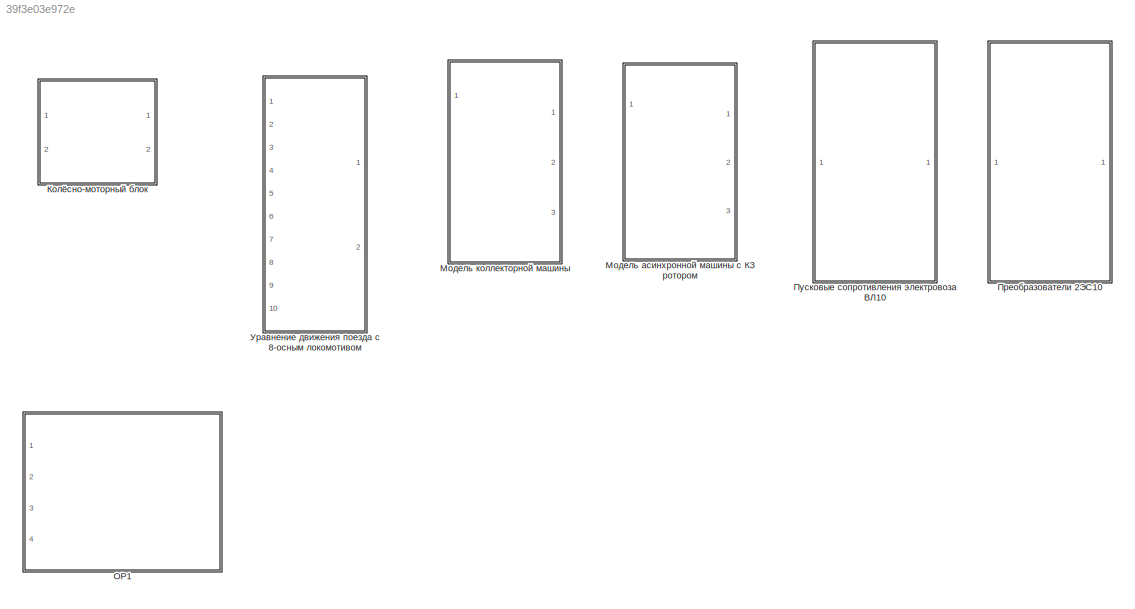
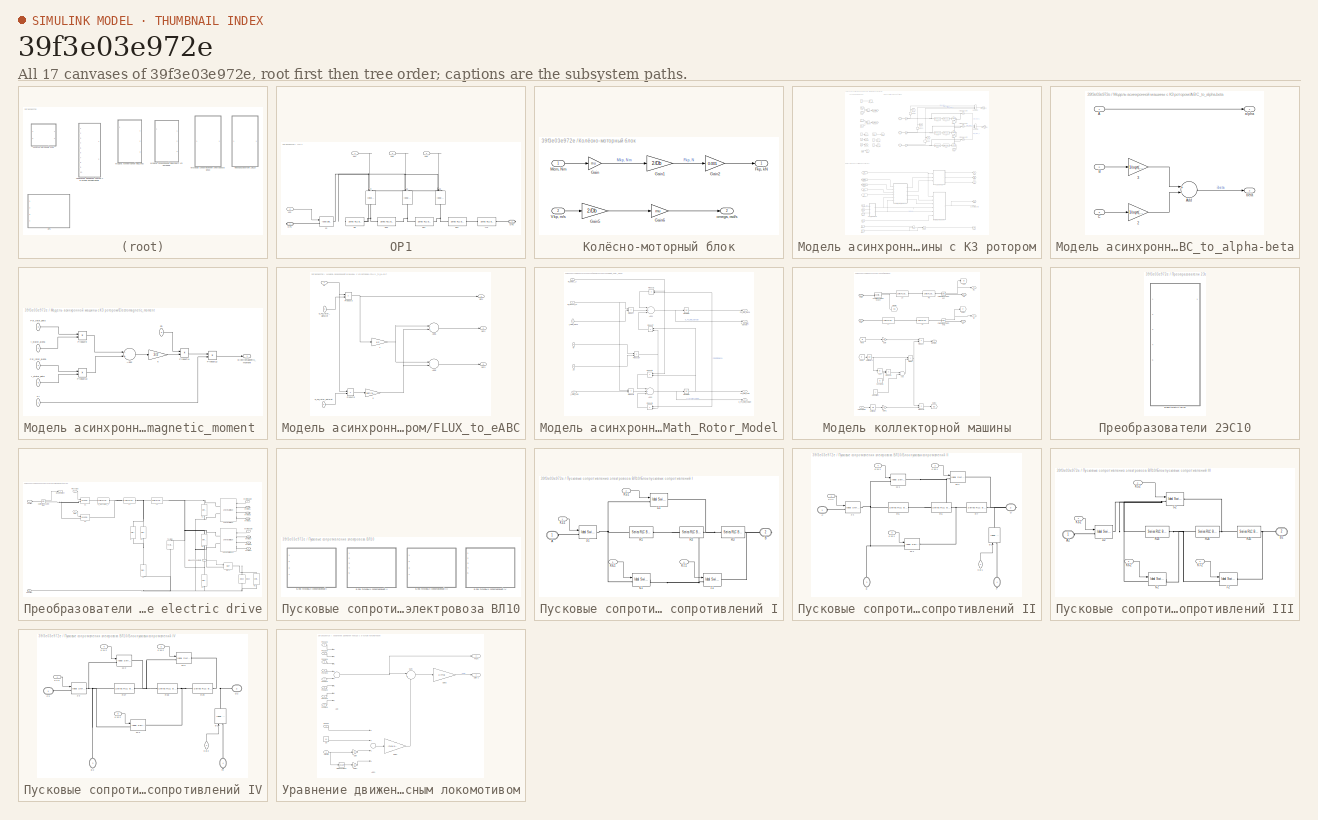
[diagram: thumbnail index - all 17 canvases of the model, root first then tree order]
MODEL slx_39f3e03e972e
KIND library
CONFIG AbsTol = auto
CONFIG EnableMultiTasking = off
CONFIG FixedStep = auto
CONFIG MaxStep = auto
CONFIG MinStep = auto
CONFIG RelTol = 1e-3
CONFIG SampleTimeConstraint = Unconstrained
CONFIG Solver = VariableStepAuto
CONFIG SolverName = VariableStepAuto
CONFIG StartTime = 0.0
CONFIG StopTime = 10.0
BLOCK [SubSystem] OP1
  Ports = [4, 0, 0, 0, 0, 0, 2]
  RequestExecContextInheritance = off
  Variant = off
BLOCK [Reference] OP1/13  REF=powerlib/Power
Electronics/Ideal Switch
  Ports = [1, 0, 0, 0, 0, 1, 1]
  SourceBlock = powerlib/Power\nElectronics/Ideal Switch
  SourceProductBaseCode = PS
  SourceProductName = Simscape Power Systems
  SourceType = Ideal Switch
BLOCK [Reference] OP1/14  REF=powerlib/Power
Electronics/Ideal Switch
  Ports = [1, 0, 0, 0, 0, 1, 1]
  SourceBlock = powerlib/Power\nElectronics/Ideal Switch
  SourceProductBaseCode = PS
  SourceProductName = Simscape Power Systems
  SourceType = Ideal Switch
BLOCK [Reference] OP1/15  REF=powerlib/Power
Electronics/Ideal Switch
  Ports = [1, 0, 0, 0, 0, 1, 1]
  SourceBlock = powerlib/Power\nElectronics/Ideal Switch
  SourceProductBaseCode = PS
  SourceProductName = Simscape Power Systems
  SourceType = Ideal Switch
BLOCK [Reference] OP1/16  REF=powerlib/Power
Electronics/Ideal Switch
  Ports = [1, 0, 0, 0, 0, 1, 1]
  SourceBlock = powerlib/Power\nElectronics/Ideal Switch
  SourceProductBaseCode = PS
  SourceProductName = Simscape Power Systems
  SourceType = Ideal Switch
BLOCK [Inport] OP1/K13
  IconDisplay = Port number
  Port = 2
BLOCK [Inport] OP1/K14
  IconDisplay = Port number
BLOCK [Inport] OP1/K15
  IconDisplay = Port number
  Port = 3
BLOCK [Inport] OP1/K16
  IconDisplay = Port number
  Port = 4
BLOCK [Reference] OP1/L71  REF=powerlib/Elements/Series RLC Branch
  Ports = [0, 0, 0, 0, 0, 1, 1]
  SourceBlock = powerlib/Elements/Series RLC Branch
  SourceProductBaseCode = PS
  SourceProductName = Simscape Power Systems
  SourceType = Series RLC Branch
BLOCK [PMIOPort] OP1/OP1
  Port = 1
  Side = Right
BLOCK [PMIOPort] OP1/OP2
  Port = 2
  Side = Right
BLOCK [Reference] OP1/R10  REF=powerlib/Elements/Series RLC Branch
  Ports = [0, 0, 0, 0, 0, 1, 1]
  SourceBlock = powerlib/Elements/Series RLC Branch
  SourceProductBaseCode = PS
  SourceProductName = Simscape Power Systems
  SourceType = Series RLC Branch
BLOCK [Reference] OP1/R11  REF=powerlib/Elements/Series RLC Branch
  Ports = [0, 0, 0, 0, 0, 1, 1]
  SourceBlock = powerlib/Elements/Series RLC Branch
  SourceProductBaseCode = PS
  SourceProductName = Simscape Power Systems
  SourceType = Series RLC Branch
BLOCK [Reference] OP1/R12  REF=powerlib/Elements/Series RLC Branch
  Ports = [0, 0, 0, 0, 0, 1, 1]
  SourceBlock = powerlib/Elements/Series RLC Branch
  SourceProductBaseCode = PS
  SourceProductName = Simscape Power Systems
  SourceType = Series RLC Branch
BLOCK [Reference] OP1/R9  REF=powerlib/Elements/Series RLC Branch
  Ports = [0, 0, 0, 0, 0, 1, 1]
  SourceBlock = powerlib/Elements/Series RLC Branch
  SourceProductBaseCode = PS
  SourceProductName = Simscape Power Systems
  SourceType = Series RLC Branch
BLOCK [SubSystem] Колёсно-моторный блок
  Ports = [2, 2]
  RequestExecContextInheritance = off
  Variant = off
BLOCK [Outport] Колёсно-моторный блок/Fkp, kN
  IconDisplay = Port number
BLOCK [Gain] Колёсно-моторный блок/Gain
  Gain = mu
  OutDataTypeStr = Inherit: Inherit via internal rule
  ParamDataTypeStr = Inherit: Inherit via internal rule
  SaturateOnIntegerOverflow = off
BLOCK [Gain] Колёсно-моторный блок/Gain1
  Gain = 2/Db
  OutDataTypeStr = Inherit: Inherit via internal rule
  ParamDataTypeStr = Inherit: Inherit via internal rule
  SaturateOnIntegerOverflow = off
BLOCK [Gain] Колёсно-моторный блок/Gain2
  Gain = 0.001
  OutDataTypeStr = Inherit: Inherit via internal rule
  ParamDataTypeStr = Inherit: Inherit via internal rule
  SaturateOnIntegerOverflow = off
BLOCK [Gain] Колёсно-моторный блок/Gain5
  Gain = 2/Db
  OutDataTypeStr = Inherit: Inherit via internal rule
  ParamDataTypeStr = Inherit: Inherit via internal rule
  SaturateOnIntegerOverflow = off
BLOCK [Gain] Колёсно-моторный блок/Gain6
  Gain = mu
  OutDataTypeStr = Inherit: Inherit via internal rule
  ParamDataTypeStr = Inherit: Inherit via internal rule
  SaturateOnIntegerOverflow = off
BLOCK [Inport] Колёсно-моторный блок/Mem, Nm
  IconDisplay = Port number
BLOCK [Inport] Колёсно-моторный блок/Vkp, m//s
  IconDisplay = Port number
  Port = 2
BLOCK [Outport] Колёсно-моторный блок/omega, rad//s
  IconDisplay = Port number
  Port = 2
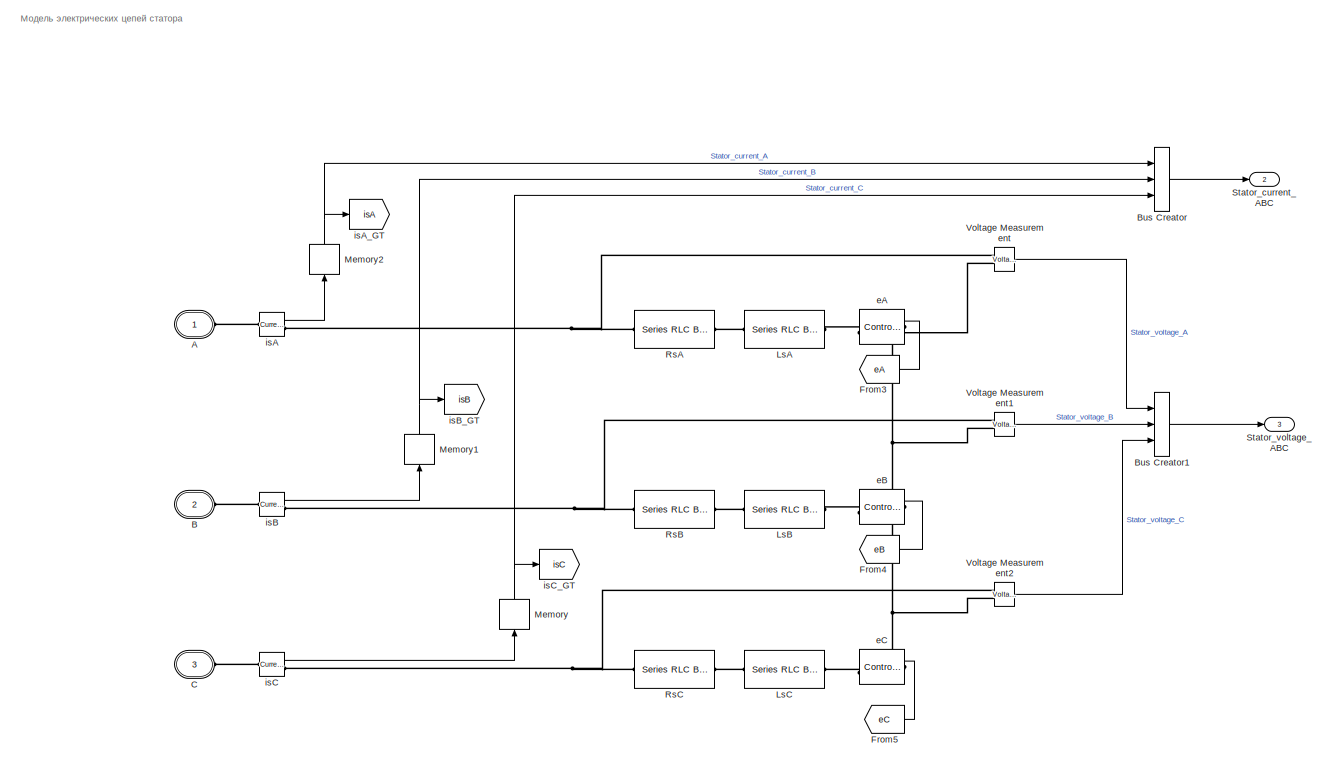
[diagram: Модель асинхронной машины с КЗ ротором - part 1/4, top center region]
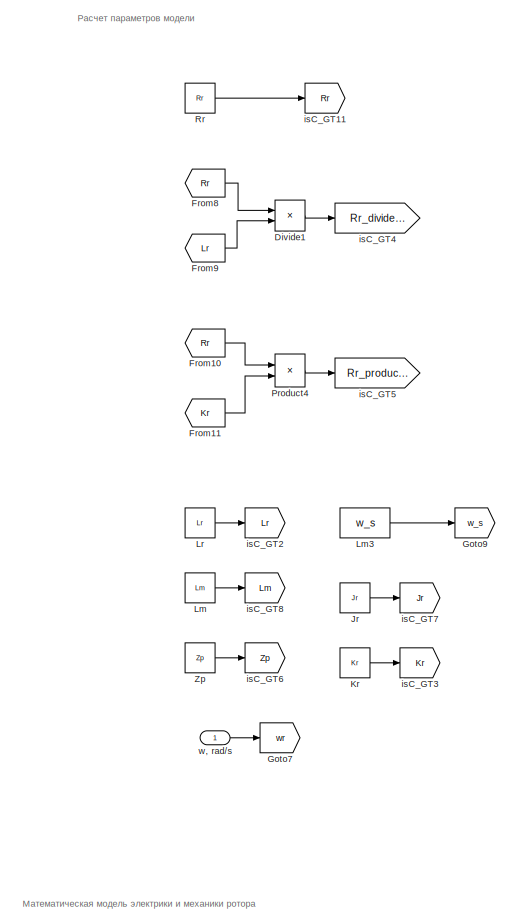
[diagram: Модель асинхронной машины с КЗ ротором - part 2/4, top left region]
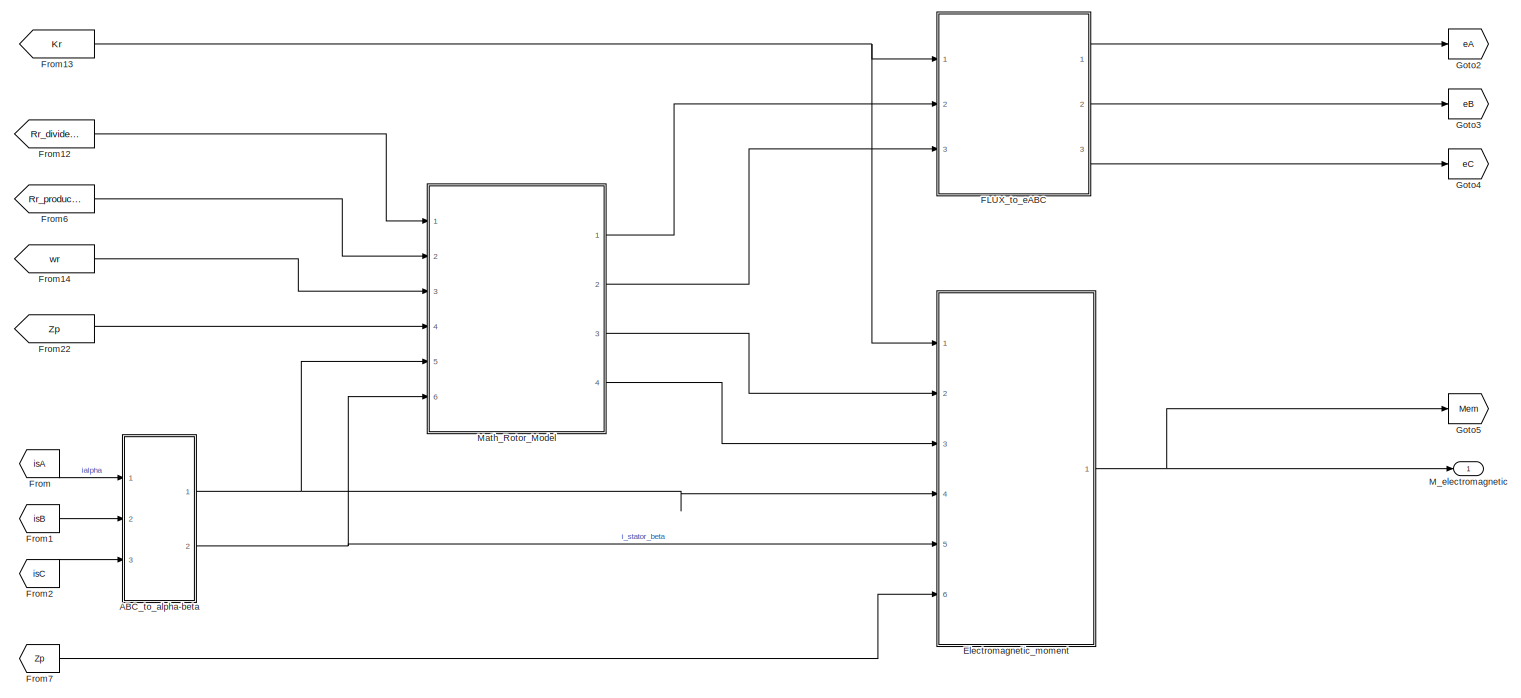
[diagram: Модель асинхронной машины с КЗ ротором - part 3/4, full width, bottom band]
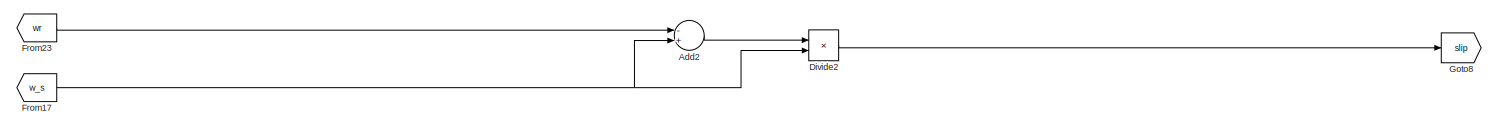
[diagram: Модель асинхронной машины с КЗ ротором - part 4/4, full width, bottom band]
BLOCK [SubSystem] Модель асинхронной машины с КЗ ротором
  Ports = [1, 3, 0, 0, 0, 3]
  RequestExecContextInheritance = off
  ShowPortLabels = FromPortBlockName
  Variant = off
BLOCK [PMIOPort] Модель асинхронной машины с КЗ ротором/A
  Port = 1
  Side = Left
  Tag = PMCPort
BLOCK [SubSystem] Модель асинхронной машины с КЗ ротором/ABC_to_alpha-beta
  Ports = [3, 2]
  RequestExecContextInheritance = off
  Variant = off
BLOCK [Gain] Модель асинхронной машины с КЗ ротором/ABC_to_alpha-beta/2
  Gain = 1/sqrt(3)
  OutDataTypeStr = Inherit: Inherit via internal rule
  ParamDataTypeStr = Inherit: Inherit via internal rule
  SaturateOnIntegerOverflow = off
BLOCK [Gain] Модель асинхронной машины с КЗ ротором/ABC_to_alpha-beta/3
  Gain = 1/sqrt(3)
  OutDataTypeStr = Inherit: Inherit via internal rule
  ParamDataTypeStr = Inherit: Inherit via internal rule
  SaturateOnIntegerOverflow = off
BLOCK [Inport] Модель асинхронной машины с КЗ ротором/ABC_to_alpha-beta/A
  IconDisplay = Port number
BLOCK [Sum] Модель асинхронной машины с КЗ ротором/ABC_to_alpha-beta/Add
  InputSameDT = off
  Inputs = +-
  OutDataTypeStr = Inherit: Inherit via internal rule
  Ports = [2, 1]
  SaturateOnIntegerOverflow = off
BLOCK [Inport] Модель асинхронной машины с КЗ ротором/ABC_to_alpha-beta/B
  IconDisplay = Port number
  Port = 2
BLOCK [Inport] Модель асинхронной машины с КЗ ротором/ABC_to_alpha-beta/C
  IconDisplay = Port number
  Port = 3
BLOCK [Outport] Модель асинхронной машины с КЗ ротором/ABC_to_alpha-beta/alpha
  IconDisplay = Port number
BLOCK [Outport] Модель асинхронной машины с КЗ ротором/ABC_to_alpha-beta/beta
  IconDisplay = Port number
  Port = 2
BLOCK [Sum] Модель асинхронной машины с КЗ ротором/Add2
  InputSameDT = off
  Inputs = -+
  OutDataTypeStr = Inherit: Inherit via internal rule
  Ports = [2, 1]
  SaturateOnIntegerOverflow = off
BLOCK [PMIOPort] Модель асинхронной машины с КЗ ротором/B
  Port = 2
  Side = Left
  Tag = PMCPort
BLOCK [BusCreator] Модель асинхронной машины с КЗ ротором/Bus Creator
  DisplayOption = bar
  InheritFromInputs = on
  Inputs = 3
  Ports = [3, 1]
BLOCK [BusCreator] Модель асинхронной машины с КЗ ротором/Bus Creator1
  DisplayOption = bar
  InheritFromInputs = on
  Inputs = 3
  Ports = [3, 1]
BLOCK [PMIOPort] Модель асинхронной машины с КЗ ротором/C
  Port = 3
  Side = Left
  Tag = PMCPort
BLOCK [Product] Модель асинхронной машины с КЗ ротором/Divide1
  InputSameDT = off
  Inputs = */
  OutDataTypeStr = Inherit: Inherit via internal rule
  Ports = [2, 1]
  RndMeth = Floor
  SaturateOnIntegerOverflow = off
BLOCK [Product] Модель асинхронной машины с КЗ ротором/Divide2
  InputSameDT = off
  Inputs = */
  OutDataTypeStr = Inherit: Inherit via internal rule
  Ports = [2, 1]
  RndMeth = Floor
  SaturateOnIntegerOverflow = off
BLOCK [SubSystem] Модель асинхронной машины с КЗ ротором/Electromagnetic_moment 
  Ports = [6, 1]
  RequestExecContextInheritance = off
  Variant = off
BLOCK [Gain] Модель асинхронной машины с КЗ ротором/Electromagnetic_moment /6
  Gain = 3/2
  OutDataTypeStr = Inherit: Inherit via internal rule
  ParamDataTypeStr = Inherit: Inherit via internal rule
  SaturateOnIntegerOverflow = off
BLOCK [Sum] Модель асинхронной машины с КЗ ротором/Electromagnetic_moment /Add2
  InputSameDT = off
  Inputs = -+
  OutDataTypeStr = Inherit: Inherit via internal rule
  Ports = [2, 1]
  SaturateOnIntegerOverflow = off
BLOCK [Outport] Модель асинхронной машины с КЗ ротором/Electromagnetic_moment /Electromagnetic_moment
  IconDisplay = Port number
BLOCK [Inport] Модель асинхронной машины с КЗ ротором/Electromagnetic_moment /Kr
  IconDisplay = Port number
BLOCK [Product] Модель асинхронной машины с КЗ ротором/Electromagnetic_moment /Product10
  InputSameDT = off
  OutDataTypeStr = Inherit: Inherit via internal rule
  Ports = [2, 1]
  RndMeth = Floor
  SaturateOnIntegerOverflow = off
BLOCK [Product] Модель асинхронной машины с КЗ ротором/Electromagnetic_moment /Product11
  InputSameDT = off
  OutDataTypeStr = Inherit: Inherit via internal rule
  Ports = [2, 1]
  RndMeth = Floor
  SaturateOnIntegerOverflow = off
BLOCK [Product] Модель асинхронной машины с КЗ ротором/Electromagnetic_moment /Product12
  InputSameDT = off
  OutDataTypeStr = Inherit: Inherit via internal rule
  Ports = [2, 1]
  RndMeth = Floor
  SaturateOnIntegerOverflow = off
BLOCK [Product] Модель асинхронной машины с КЗ ротором/Electromagnetic_moment /Product9
  InputSameDT = off
  OutDataTypeStr = Inherit: Inherit via internal rule
  Ports = [2, 1]
  RndMeth = Floor
  SaturateOnIntegerOverflow = off
BLOCK [Inport] Модель асинхронной машины с КЗ ротором/Electromagnetic_moment /Psi_rotor_alpha
  IconDisplay = Port number
  Port = 2
BLOCK [Inport] Модель асинхронной машины с КЗ ротором/Electromagnetic_moment /Psi_rotor_beta
  IconDisplay = Port number
  Port = 3
BLOCK [Inport] Модель асинхронной машины с КЗ ротором/Electromagnetic_moment /Zp
  IconDisplay = Port number
  Port = 6
BLOCK [Inport] Модель асинхронной машины с КЗ ротором/Electromagnetic_moment /i_stator_alpha
  IconDisplay = Port number
  Port = 4
BLOCK [Inport] Модель асинхронной машины с КЗ ротором/Electromagnetic_moment /i_stator_beta
  IconDisplay = Port number
  Port = 5
BLOCK [SubSystem] Модель асинхронной машины с КЗ ротором/FLUX_to_eABC
  Ports = [3, 3]
  RequestExecContextInheritance = off
  Variant = off
BLOCK [Gain] Модель асинхронной машины с КЗ ротором/FLUX_to_eABC/1
  Gain = 1/2
  OutDataTypeStr = Inherit: Inherit via internal rule
  ParamDataTypeStr = Inherit: Inherit via internal rule
  SaturateOnIntegerOverflow = off
BLOCK [Gain] Модель асинхронной машины с КЗ ротором/FLUX_to_eABC/5
  Gain = sqrt(3)/2
  OutDataTypeStr = Inherit: Inherit via internal rule
  ParamDataTypeStr = Inherit: Inherit via internal rule
  SaturateOnIntegerOverflow = off
BLOCK [Sum] Модель асинхронной машины с КЗ ротором/FLUX_to_eABC/Add5
  InputSameDT = off
  Inputs = -+
  OutDataTypeStr = Inherit: Inherit via internal rule
  Ports = [2, 1]
  SaturateOnIntegerOverflow = off
BLOCK [Sum] Модель асинхронной машины с КЗ ротором/FLUX_to_eABC/Add6
  InputSameDT = off
  Inputs = --
  OutDataTypeStr = Inherit: Inherit via internal rule
  Ports = [2, 1]
  SaturateOnIntegerOverflow = off
BLOCK [Inport] Модель асинхронной машины с КЗ ротором/FLUX_to_eABC/Kr
  IconDisplay = Port number
BLOCK [Outport] Модель асинхронной машины с КЗ ротором/FLUX_to_eABC/Out1
  IconDisplay = Port number
BLOCK [Outport] Модель асинхронной машины с КЗ ротором/FLUX_to_eABC/Out2
  IconDisplay = Port number
  Port = 2
BLOCK [Outport] Модель асинхронной машины с КЗ ротором/FLUX_to_eABC/Out3
  IconDisplay = Port number
  Port = 3
BLOCK [Product] Модель асинхронной машины с КЗ ротором/FLUX_to_eABC/Product3
  InputSameDT = off
  OutDataTypeStr = Inherit: Inherit via internal rule
  Ports = [2, 1]
  RndMeth = Floor
  SaturateOnIntegerOverflow = off
BLOCK [Product] Модель асинхронной машины с КЗ ротором/FLUX_to_eABC/Product6
  InputSameDT = off
  OutDataTypeStr = Inherit: Inherit via internal rule
  Ports = [2, 1]
  RndMeth = Floor
  SaturateOnIntegerOverflow = off
BLOCK [Inport] Модель асинхронной машины с КЗ ротором/FLUX_to_eABC/d_Psi_rotor_alpha//dt
  IconDisplay = Port number
  Port = 2
BLOCK [Inport] Модель асинхронной машины с КЗ ротором/FLUX_to_eABC/d_Psi_rotor_beta//dt
  IconDisplay = Port number
  Port = 3
BLOCK [From] Модель асинхронной машины с КЗ ротором/From
  GotoTag = isA
BLOCK [From] Модель асинхронной машины с КЗ ротором/From1
  GotoTag = isB
BLOCK [From] Модель асинхронной машины с КЗ ротором/From10
  GotoTag = Rr
BLOCK [From] Модель асинхронной машины с КЗ ротором/From11
  GotoTag = Kr
BLOCK [From] Модель асинхронной машины с КЗ ротором/From12
  GotoTag = Rr_divide_Lr
BLOCK [From] Модель асинхронной машины с КЗ ротором/From13
  GotoTag = Kr
BLOCK [From] Модель асинхронной машины с КЗ ротором/From14
  GotoTag = wr
BLOCK [From] Модель асинхронной машины с КЗ ротором/From17
  GotoTag = w_s
BLOCK [From] Модель асинхронной машины с КЗ ротором/From2
  GotoTag = isC
BLOCK [From] Модель асинхронной машины с КЗ ротором/From22
  GotoTag = Zp
BLOCK [From] Модель асинхронной машины с КЗ ротором/From23
  GotoTag = wr
BLOCK [From] Модель асинхронной машины с КЗ ротором/From3
  GotoTag = eA
BLOCK [From] Модель асинхронной машины с КЗ ротором/From4
  GotoTag = eB
BLOCK [From] Модель асинхронной машины с КЗ ротором/From5
  GotoTag = eC
BLOCK [From] Модель асинхронной машины с КЗ ротором/From6
  GotoTag = Rr_product_Kr
BLOCK [From] Модель асинхронной машины с КЗ ротором/From7
  GotoTag = Zp
BLOCK [From] Модель асинхронной машины с КЗ ротором/From8
  GotoTag = Rr
BLOCK [From] Модель асинхронной машины с КЗ ротором/From9
  GotoTag = Lr
BLOCK [Goto] Модель асинхронной машины с КЗ ротором/Goto2
  GotoTag = eA
BLOCK [Goto] Модель асинхронной машины с КЗ ротором/Goto3
  GotoTag = eB
BLOCK [Goto] Модель асинхронной машины с КЗ ротором/Goto4
  GotoTag = eC
BLOCK [Goto] Модель асинхронной машины с КЗ ротором/Goto5
  GotoTag = Mem
BLOCK [Goto] Модель асинхронной машины с КЗ ротором/Goto7
  GotoTag = wr
BLOCK [Goto] Модель асинхронной машины с КЗ ротором/Goto8
  GotoTag = slip
BLOCK [Goto] Модель асинхронной машины с КЗ ротором/Goto9
  GotoTag = w_s
BLOCK [Constant] Модель асинхронной машины с КЗ ротором/Jr
  Value = Jr
BLOCK [Constant] Модель асинхронной машины с КЗ ротором/Kr
  Value = Kr
BLOCK [Constant] Модель асинхронной машины с КЗ ротором/Lm
  Value = Lm
BLOCK [Constant] Модель асинхронной машины с КЗ ротором/Lm3
  Value = w_s
BLOCK [Constant] Модель асинхронной машины с КЗ ротором/Lr
  Value = Lr
BLOCK [Reference] Модель асинхронной машины с КЗ ротором/LsA  REF=powerlib/Elements/Series RLC Branch
  Ports = [0, 0, 0, 0, 0, 1, 1]
  SourceBlock = powerlib/Elements/Series RLC Branch
  SourceProductBaseCode = PS
  SourceProductName = Simscape Power Systems
  SourceType = Series RLC Branch
BLOCK [Reference] Модель асинхронной машины с КЗ ротором/LsB  REF=powerlib/Elements/Series RLC Branch
  Ports = [0, 0, 0, 0, 0, 1, 1]
  SourceBlock = powerlib/Elements/Series RLC Branch
  SourceProductBaseCode = PS
  SourceProductName = Simscape Power Systems
  SourceType = Series RLC Branch
BLOCK [Reference] Модель асинхронной машины с КЗ ротором/LsC  REF=powerlib/Elements/Series RLC Branch
  Ports = [0, 0, 0, 0, 0, 1, 1]
  SourceBlock = powerlib/Elements/Series RLC Branch
  SourceProductBaseCode = PS
  SourceProductName = Simscape Power Systems
  SourceType = Series RLC Branch
BLOCK [Outport] Модель асинхронной машины с КЗ ротором/M_electromagnetic
  IconDisplay = Port number
BLOCK [SubSystem] Модель асинхронной машины с КЗ ротором/Math_Rotor_Model
  Ports = [6, 4]
  RequestExecContextInheritance = off
  Variant = off
BLOCK [Sum] Модель асинхронной машины с КЗ ротором/Math_Rotor_Model/Add3
  InputSameDT = off
  Inputs = -++
  OutDataTypeStr = Inherit: Inherit via internal rule
  Ports = [3, 1]
  SaturateOnIntegerOverflow = off
BLOCK [Sum] Модель асинхронной машины с КЗ ротором/Math_Rotor_Model/Add4
  InputSameDT = off
  Inputs = -+-
  OutDataTypeStr = Inherit: Inherit via internal rule
  Ports = [3, 1]
  SaturateOnIntegerOverflow = off
BLOCK [Integrator] Модель асинхронной машины с КЗ ротором/Math_Rotor_Model/Integrator1
  Ports = [1, 1]
BLOCK [Integrator] Модель асинхронной машины с КЗ ротором/Math_Rotor_Model/Integrator2
  Ports = [1, 1]
BLOCK [Product] Модель асинхронной машины с КЗ ротором/Math_Rotor_Model/Product
  InputSameDT = off
  OutDataTypeStr = Inherit: Inherit via internal rule
  Ports = [2, 1]
  RndMeth = Floor
  SaturateOnIntegerOverflow = off
BLOCK [Product] Модель асинхронной машины с КЗ ротором/Math_Rotor_Model/Product1
  InputSameDT = off
  OutDataTypeStr = Inherit: Inherit via internal rule
  Ports = [2, 1]
  RndMeth = Floor
  SaturateOnIntegerOverflow = off
BLOCK [Product] Модель асинхронной машины с КЗ ротором/Math_Rotor_Model/Product14
  InputSameDT = off
  OutDataTypeStr = Inherit: Inherit via internal rule
  Ports = [2, 1]
  RndMeth = Floor
  SaturateOnIntegerOverflow = off
BLOCK [Product] Модель асинхронной машины с КЗ ротором/Math_Rotor_Model/Product2
  InputSameDT = off
  OutDataTypeStr = Inherit: Inherit via internal rule
  Ports = [2, 1]
  RndMeth = Floor
  SaturateOnIntegerOverflow = off
BLOCK [Product] Модель асинхронной машины с КЗ ротором/Math_Rotor_Model/Product5
  InputSameDT = off
  OutDataTypeStr = Inherit: Inherit via internal rule
  Ports = [2, 1]
  RndMeth = Floor
  SaturateOnIntegerOverflow = off
BLOCK [Product] Модель асинхронной машины с КЗ ротором/Math_Rotor_Model/Product7
  InputSameDT = off
  OutDataTypeStr = Inherit: Inherit via internal rule
  Ports = [2, 1]
  RndMeth = Floor
  SaturateOnIntegerOverflow = off
BLOCK [Product] Модель асинхронной машины с КЗ ротором/Math_Rotor_Model/Product8
  InputSameDT = off
  OutDataTypeStr = Inherit: Inherit via internal rule
  Ports = [2, 1]
  RndMeth = Floor
  SaturateOnIntegerOverflow = off
BLOCK [Outport] Модель асинхронной машины с КЗ ротором/Math_Rotor_Model/Psi_rotor_alpha
  IconDisplay = Port number
  Port = 3
BLOCK [Outport] Модель асинхронной машины с КЗ ротором/Math_Rotor_Model/Psi_rotor_beta
  IconDisplay = Port number
  Port = 4
BLOCK [Inport] Модель асинхронной машины с КЗ ротором/Math_Rotor_Model/Rr_divide_Lr
  IconDisplay = Port number
BLOCK [Inport] Модель асинхронной машины с КЗ ротором/Math_Rotor_Model/Rr_product_Kr
  IconDisplay = Port number
  Port = 2
BLOCK [Inport] Модель асинхронной машины с КЗ ротором/Math_Rotor_Model/Zp
  IconDisplay = Port number
  Port = 4
BLOCK [Outport] Модель асинхронной машины с КЗ ротором/Math_Rotor_Model/d_Psi_rotor_alpha//dt
  IconDisplay = Port number
BLOCK [Outport] Модель асинхронной машины с КЗ ротором/Math_Rotor_Model/d_Psi_rotor_beta//dt
  IconDisplay = Port number
  Port = 2
BLOCK [Inport] Модель асинхронной машины с КЗ ротором/Math_Rotor_Model/i_stator_alpha
  IconDisplay = Port number
  Port = 5
BLOCK [Inport] Модель асинхронной машины с КЗ ротором/Math_Rotor_Model/i_stator_beta
  IconDisplay = Port number
  Port = 6
BLOCK [Inport] Модель асинхронной машины с КЗ ротором/Math_Rotor_Model/wr
  IconDisplay = Port number
  Port = 3
BLOCK [Memory] Модель асинхронной машины с КЗ ротором/Memory
BLOCK [Memory] Модель асинхронной машины с КЗ ротором/Memory1
BLOCK [Memory] Модель асинхронной машины с КЗ ротором/Memory2
BLOCK [Product] Модель асинхронной машины с КЗ ротором/Product4
  InputSameDT = off
  OutDataTypeStr = Inherit: Inherit via internal rule
  Ports = [2, 1]
  RndMeth = Floor
  SaturateOnIntegerOverflow = off
BLOCK [Constant] Модель асинхронной машины с КЗ ротором/Rr
  Value = Rr
BLOCK [Reference] Модель асинхронной машины с КЗ ротором/RsA  REF=powerlib/Elements/Series RLC Branch
  Ports = [0, 0, 0, 0, 0, 1, 1]
  SourceBlock = powerlib/Elements/Series RLC Branch
  SourceProductBaseCode = PS
  SourceProductName = Simscape Power Systems
  SourceType = Series RLC Branch
BLOCK [Reference] Модель асинхронной машины с КЗ ротором/RsB  REF=powerlib/Elements/Series RLC Branch
  Ports = [0, 0, 0, 0, 0, 1, 1]
  SourceBlock = powerlib/Elements/Series RLC Branch
  SourceProductBaseCode = PS
  SourceProductName = Simscape Power Systems
  SourceType = Series RLC Branch
BLOCK [Reference] Модель асинхронной машины с КЗ ротором/RsC  REF=powerlib/Elements/Series RLC Branch
  Ports = [0, 0, 0, 0, 0, 1, 1]
  SourceBlock = powerlib/Elements/Series RLC Branch
  SourceProductBaseCode = PS
  SourceProductName = Simscape Power Systems
  SourceType = Series RLC Branch
BLOCK [Outport] Модель асинхронной машины с КЗ ротором/Stator_current_ABC
  IconDisplay = Port number
  Port = 2
BLOCK [Outport] Модель асинхронной машины с КЗ ротором/Stator_voltage_ABC
  IconDisplay = Port number
  Port = 3
BLOCK [Reference] Модель асинхронной машины с КЗ ротором/Voltage Measurement  REF=powerlib/Measurements/Voltage Measurement
  Ports = [0, 1, 0, 0, 0, 2]
  SourceBlock = powerlib/Measurements/Voltage Measurement
  SourceProductBaseCode = PS
  SourceProductName = Simscape Power Systems
  SourceType = Voltage Measurement
  UserDataPersistent = on
BLOCK [Reference] Модель асинхронной машины с КЗ ротором/Voltage Measurement1  REF=powerlib/Measurements/Voltage Measurement
  Ports = [0, 1, 0, 0, 0, 2]
  SourceBlock = powerlib/Measurements/Voltage Measurement
  SourceProductBaseCode = PS
  SourceProductName = Simscape Power Systems
  SourceType = Voltage Measurement
  UserDataPersistent = on
BLOCK [Reference] Модель асинхронной машины с КЗ ротором/Voltage Measurement2  REF=powerlib/Measurements/Voltage Measurement
  Ports = [0, 1, 0, 0, 0, 2]
  SourceBlock = powerlib/Measurements/Voltage Measurement
  SourceProductBaseCode = PS
  SourceProductName = Simscape Power Systems
  SourceType = Voltage Measurement
  UserDataPersistent = on
BLOCK [Constant] Модель асинхронной машины с КЗ ротором/Zp
  Value = Zp
BLOCK [Reference] Модель асинхронной машины с КЗ ротором/eA  REF=powerlib/Electrical
Sources/Controlled Voltage Source
  Ports = [1, 0, 0, 0, 0, 1, 1]
  SourceBlock = powerlib/Electrical\nSources/Controlled Voltage Source
  SourceProductBaseCode = PS
  SourceProductName = Simscape Power Systems
  SourceType = Controlled Voltage Source
BLOCK [Reference] Модель асинхронной машины с КЗ ротором/eB  REF=powerlib/Electrical
Sources/Controlled Voltage Source
  Ports = [1, 0, 0, 0, 0, 1, 1]
  SourceBlock = powerlib/Electrical\nSources/Controlled Voltage Source
  SourceProductBaseCode = PS
  SourceProductName = Simscape Power Systems
  SourceType = Controlled Voltage Source
BLOCK [Reference] Модель асинхронной машины с КЗ ротором/eC  REF=powerlib/Electrical
Sources/Controlled Voltage Source
  Ports = [1, 0, 0, 0, 0, 1, 1]
  SourceBlock = powerlib/Electrical\nSources/Controlled Voltage Source
  SourceProductBaseCode = PS
  SourceProductName = Simscape Power Systems
  SourceType = Controlled Voltage Source
BLOCK [Reference] Модель асинхронной машины с КЗ ротором/isA  REF=powerlib/Measurements/Current Measurement
  Ports = [0, 1, 0, 0, 0, 1, 1]
  SourceBlock = powerlib/Measurements/Current Measurement
  SourceProductBaseCode = PS
  SourceProductName = Simscape Power Systems
  SourceType = Current Measurement
  UserDataPersistent = on
BLOCK [Goto] Модель асинхронной машины с КЗ ротором/isA_GT
  GotoTag = isA
BLOCK [Reference] Модель асинхронной машины с КЗ ротором/isB  REF=powerlib/Measurements/Current Measurement
  Ports = [0, 1, 0, 0, 0, 1, 1]
  SourceBlock = powerlib/Measurements/Current Measurement
  SourceProductBaseCode = PS
  SourceProductName = Simscape Power Systems
  SourceType = Current Measurement
  UserDataPersistent = on
BLOCK [Goto] Модель асинхронной машины с КЗ ротором/isB_GT
  GotoTag = isB
BLOCK [Reference] Модель асинхронной машины с КЗ ротором/isC  REF=powerlib/Measurements/Current Measurement
  Ports = [0, 1, 0, 0, 0, 1, 1]
  SourceBlock = powerlib/Measurements/Current Measurement
  SourceProductBaseCode = PS
  SourceProductName = Simscape Power Systems
  SourceType = Current Measurement
  UserDataPersistent = on
BLOCK [Goto] Модель асинхронной машины с КЗ ротором/isC_GT
  GotoTag = isC
BLOCK [Goto] Модель асинхронной машины с КЗ ротором/isC_GT11
  GotoTag = Rr
BLOCK [Goto] Модель асинхронной машины с КЗ ротором/isC_GT2
  GotoTag = Lr
BLOCK [Goto] Модель асинхронной машины с КЗ ротором/isC_GT3
  GotoTag = Kr
BLOCK [Goto] Модель асинхронной машины с КЗ ротором/isC_GT4
  GotoTag = Rr_divide_Lr
BLOCK [Goto] Модель асинхронной машины с КЗ ротором/isC_GT5
  GotoTag = Rr_product_Kr
BLOCK [Goto] Модель асинхронной машины с КЗ ротором/isC_GT6
  GotoTag = Zp
BLOCK [Goto] Модель асинхронной машины с КЗ ротором/isC_GT7
  GotoTag = Jr
BLOCK [Goto] Модель асинхронной машины с КЗ ротором/isC_GT8
  GotoTag = Lm
BLOCK [Inport] Модель асинхронной машины с КЗ ротором/w, rad//s
  IconDisplay = Port number
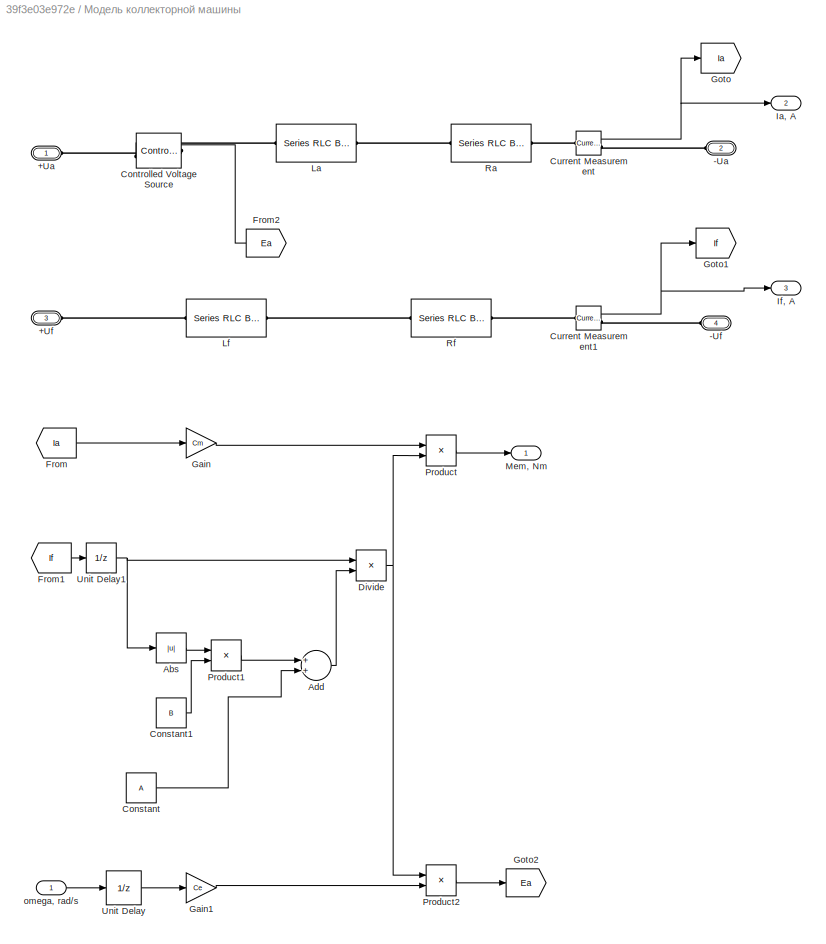
BLOCK [SubSystem] Модель коллекторной машины
  Ports = [1, 3, 0, 0, 0, 4]
  RequestExecContextInheritance = off
  Variant = off
BLOCK [PMIOPort] Модель коллекторной машины/+Ua
  Port = 1
  Side = Left
BLOCK [PMIOPort] Модель коллекторной машины/+Uf
  Port = 3
  Side = Left
BLOCK [PMIOPort] Модель коллекторной машины/-Ua
  Port = 2
  Side = Left
BLOCK [PMIOPort] Модель коллекторной машины/-Uf
  Port = 4
  Side = Left
BLOCK [Abs] Модель коллекторной машины/Abs
  SaturateOnIntegerOverflow = off
BLOCK [Sum] Модель коллекторной машины/Add
  InputSameDT = off
  OutDataTypeStr = Inherit: Inherit via internal rule
  Ports = [2, 1]
  SaturateOnIntegerOverflow = off
BLOCK [Constant] Модель коллекторной машины/Constant
  Value = A
BLOCK [Constant] Модель коллекторной машины/Constant1
  Value = B
BLOCK [Reference] Модель коллекторной машины/Controlled Voltage Source  REF=powerlib/Electrical
Sources/Controlled Voltage Source
  Ports = [1, 0, 0, 0, 0, 1, 1]
  SourceBlock = powerlib/Electrical\nSources/Controlled Voltage Source
  SourceProductBaseCode = PS
  SourceProductName = Simscape Power Systems
  SourceType = Controlled Voltage Source
BLOCK [Reference] Модель коллекторной машины/Current Measurement  REF=powerlib/Measurements/Current Measurement
  Ports = [0, 1, 0, 0, 0, 1, 1]
  SourceBlock = powerlib/Measurements/Current Measurement
  SourceProductBaseCode = PS
  SourceProductName = Simscape Power Systems
  SourceType = Current Measurement
  UserDataPersistent = on
BLOCK [Reference] Модель коллекторной машины/Current Measurement1  REF=powerlib/Measurements/Current Measurement
  Ports = [0, 1, 0, 0, 0, 1, 1]
  SourceBlock = powerlib/Measurements/Current Measurement
  SourceProductBaseCode = PS
  SourceProductName = Simscape Power Systems
  SourceType = Current Measurement
  UserDataPersistent = on
BLOCK [Product] Модель коллекторной машины/Divide
  InputSameDT = off
  Inputs = */
  OutDataTypeStr = Inherit: Inherit via internal rule
  Ports = [2, 1]
  RndMeth = Floor
  SaturateOnIntegerOverflow = off
BLOCK [From] Модель коллекторной машины/From
  GotoTag = Ia
BLOCK [From] Модель коллекторной машины/From1
  GotoTag = If
BLOCK [From] Модель коллекторной машины/From2
  GotoTag = Ea
BLOCK [Gain] Модель коллекторной машины/Gain
  Gain = Cm
  OutDataTypeStr = Inherit: Inherit via internal rule
  ParamDataTypeStr = Inherit: Inherit via internal rule
  SaturateOnIntegerOverflow = off
BLOCK [Gain] Модель коллекторной машины/Gain1
  Gain = Ce
  OutDataTypeStr = Inherit: Inherit via internal rule
  ParamDataTypeStr = Inherit: Inherit via internal rule
  SaturateOnIntegerOverflow = off
BLOCK [Goto] Модель коллекторной машины/Goto
  GotoTag = Ia
BLOCK [Goto] Модель коллекторной машины/Goto1
  GotoTag = If
BLOCK [Goto] Модель коллекторной машины/Goto2
  GotoTag = Ea
BLOCK [Outport] Модель коллекторной машины/Ia, A
  IconDisplay = Port number
  Port = 2
BLOCK [Outport] Модель коллекторной машины/If, A
  IconDisplay = Port number
  Port = 3
BLOCK [Reference] Модель коллекторной машины/La  REF=powerlib/Elements/Series RLC Branch
  Ports = [0, 0, 0, 0, 0, 1, 1]
  SourceBlock = powerlib/Elements/Series RLC Branch
  SourceProductBaseCode = PS
  SourceProductName = Simscape Power Systems
  SourceType = Series RLC Branch
BLOCK [Reference] Модель коллекторной машины/Lf  REF=powerlib/Elements/Series RLC Branch
  Ports = [0, 0, 0, 0, 0, 1, 1]
  SourceBlock = powerlib/Elements/Series RLC Branch
  SourceProductBaseCode = PS
  SourceProductName = Simscape Power Systems
  SourceType = Series RLC Branch
BLOCK [Outport] Модель коллекторной машины/Mem, Nm
  IconDisplay = Port number
BLOCK [Product] Модель коллекторной машины/Product
  InputSameDT = off
  OutDataTypeStr = Inherit: Inherit via internal rule
  Ports = [2, 1]
  RndMeth = Floor
  SaturateOnIntegerOverflow = off
BLOCK [Product] Модель коллекторной машины/Product1
  InputSameDT = off
  OutDataTypeStr = Inherit: Inherit via internal rule
  Ports = [2, 1]
  RndMeth = Floor
  SaturateOnIntegerOverflow = off
BLOCK [Product] Модель коллекторной машины/Product2
  InputSameDT = off
  OutDataTypeStr = Inherit: Inherit via internal rule
  Ports = [2, 1]
  RndMeth = Floor
  SaturateOnIntegerOverflow = off
BLOCK [Reference] Модель коллекторной машины/Ra  REF=powerlib/Elements/Series RLC Branch
  Ports = [0, 0, 0, 0, 0, 1, 1]
  SourceBlock = powerlib/Elements/Series RLC Branch
  SourceProductBaseCode = PS
  SourceProductName = Simscape Power Systems
  SourceType = Series RLC Branch
BLOCK [Reference] Модель коллекторной машины/Rf  REF=powerlib/Elements/Series RLC Branch
  Ports = [0, 0, 0, 0, 0, 1, 1]
  SourceBlock = powerlib/Elements/Series RLC Branch
  SourceProductBaseCode = PS
  SourceProductName = Simscape Power Systems
  SourceType = Series RLC Branch
BLOCK [UnitDelay] Модель коллекторной машины/Unit Delay
  InputProcessing = Elements as channels (sample based)
  SampleTime = -1
BLOCK [UnitDelay] Модель коллекторной машины/Unit Delay1
  InputProcessing = Elements as channels (sample based)
  SampleTime = -1
BLOCK [Inport] Модель коллекторной машины/omega, rad//s
  IconDisplay = Port number
BLOCK [SubSystem] Преобразователи 2ЭС10
  Ports = []
  RequestExecContextInheritance = off
  Variant = off
BLOCK [SubSystem] Преобразователи 2ЭС10/Bogie electric drive
  Ports = [5, 1, 0, 0, 0, 2, 6]
  RequestExecContextInheritance = off
  Variant = off
BLOCK [Outport] Преобразователи 2ЭС10/Bogie electric drive/BogieCurrent
  IconDisplay = Port number
BLOCK [Inport] Преобразователи 2ЭС10/Bogie electric drive/BrakeChopperGate
  IconDisplay = Port number
  Port = 5
BLOCK [Reference] Преобразователи 2ЭС10/Bogie electric drive/C0  REF=powerlib/Elements/Series RLC Branch
  Ports = [0, 0, 0, 0, 0, 1, 1]
  SourceBlock = powerlib/Elements/Series RLC Branch
  SourceProductBaseCode = PS
  SourceProductName = Simscape Power Systems
  SourceType = Series RLC Branch
BLOCK [Reference] Преобразователи 2ЭС10/Bogie electric drive/C1  REF=powerlib/Elements/Series RLC Branch
  Ports = [0, 0, 0, 0, 0, 1, 1]
  SourceBlock = powerlib/Elements/Series RLC Branch
  SourceProductBaseCode = PS
  SourceProductName = Simscape Power Systems
  SourceType = Series RLC Branch
BLOCK [Reference] Преобразователи 2ЭС10/Bogie electric drive/C2  REF=powerlib/Elements/Series RLC Branch
  Ports = [0, 0, 0, 0, 0, 1, 1]
  SourceBlock = powerlib/Elements/Series RLC Branch
  SourceProductBaseCode = PS
  SourceProductName = Simscape Power Systems
  SourceType = Series RLC Branch
BLOCK [Reference] Преобразователи 2ЭС10/Bogie electric drive/C3  REF=powerlib/Elements/Series RLC Branch
  Ports = [0, 0, 0, 0, 0, 1, 1]
  SourceBlock = powerlib/Elements/Series RLC Branch
  SourceProductBaseCode = PS
  SourceProductName = Simscape Power Systems
  SourceType = Series RLC Branch
BLOCK [Reference] Преобразователи 2ЭС10/Bogie electric drive/Current Measurement  REF=powerlib/Measurements/Current Measurement
  Ports = [0, 1, 0, 0, 0, 1, 1]
  SourceBlock = powerlib/Measurements/Current Measurement
  SourceProductBaseCode = PS
  SourceProductName = Simscape Power Systems
  SourceType = Current Measurement
  UserDataPersistent = on
BLOCK [Reference] Преобразователи 2ЭС10/Bogie electric drive/Diode  REF=powerlib/Power
Electronics/Diode
  Ports = [0, 0, 0, 0, 0, 1, 1]
  SourceBlock = powerlib/Power\nElectronics/Diode
  SourceProductBaseCode = PS
  SourceProductName = Simscape Power Systems
  SourceType = Diode
BLOCK [Reference] Преобразователи 2ЭС10/Bogie electric drive/IGBT1  REF=powerlib/Power
Electronics/IGBT
  Ports = [1, 0, 0, 0, 0, 1, 1]
  SourceBlock = powerlib/Power\nElectronics/IGBT
  SourceProductBaseCode = PS
  SourceProductName = Simscape Power Systems
  SourceType = IGBT
BLOCK [PMIOPort] Преобразователи 2ЭС10/Bogie electric drive/Inverter1A
  Port = 1
  Side = Right
BLOCK [PMIOPort] Преобразователи 2ЭС10/Bogie electric drive/Inverter1B
  Port = 2
  Side = Right
BLOCK [PMIOPort] Преобразователи 2ЭС10/Bogie electric drive/Inverter1C
  Port = 3
  Side = Right
BLOCK [Inport] Преобразователи 2ЭС10/Bogie electric drive/Inverter1Gate
  IconDisplay = Port number
  Port = 3
BLOCK [PMIOPort] Преобразователи 2ЭС10/Bogie electric drive/Inverter2A
  Port = 4
  Side = Right
BLOCK [PMIOPort] Преобразователи 2ЭС10/Bogie electric drive/Inverter2B
  Port = 5
  Side = Right
BLOCK [PMIOPort] Преобразователи 2ЭС10/Bogie electric drive/Inverter2C
  Port = 6
  Side = Right
BLOCK [Inport] Преобразователи 2ЭС10/Bogie electric drive/Inverter2Gate
  IconDisplay = Port number
  Port = 4
BLOCK [Reference] Преобразователи 2ЭС10/Bogie electric drive/L1  REF=powerlib/Elements/Series RLC Branch
  Ports = [0, 0, 0, 0, 0, 1, 1]
  SourceBlock = powerlib/Elements/Series RLC Branch
  SourceProductBaseCode = PS
  SourceProductName = Simscape Power Systems
  SourceType = Series RLC Branch
BLOCK [Reference] Преобразователи 2ЭС10/Bogie electric drive/L2  REF=powerlib/Elements/Series RLC Branch
  Ports = [0, 0, 0, 0, 0, 1, 1]
  SourceBlock = powerlib/Elements/Series RLC Branch
  SourceProductBaseCode = PS
  SourceProductName = Simscape Power Systems
  SourceType = Series RLC Branch
BLOCK [PMIOPort] Преобразователи 2ЭС10/Bogie electric drive/Negative
  Port = 8
  Side = Left
BLOCK [PMIOPort] Преобразователи 2ЭС10/Bogie electric drive/Positive
  Port = 7
  Side = Left
BLOCK [Inport] Преобразователи 2ЭС10/Bogie electric drive/Precharge
  IconDisplay = Port number
BLOCK [Reference] Преобразователи 2ЭС10/Bogie electric drive/R  REF=powerlib/Elements/Series RLC Branch
  Ports = [0, 0, 0, 0, 0, 1, 1]
  SourceBlock = powerlib/Elements/Series RLC Branch
  SourceProductBaseCode = PS
  SourceProductName = Simscape Power Systems
  SourceType = Series RLC Branch
BLOCK [Reference] Преобразователи 2ЭС10/Bogie electric drive/R1  REF=powerlib/Elements/Series RLC Branch
  Ports = [0, 0, 0, 0, 0, 1, 1]
  SourceBlock = powerlib/Elements/Series RLC Branch
  SourceProductBaseCode = PS
  SourceProductName = Simscape Power Systems
  SourceType = Series RLC Branch
BLOCK [Reference] Преобразователи 2ЭС10/Bogie electric drive/R2  REF=powerlib/Elements/Series RLC Branch
  Ports = [0, 0, 0, 0, 0, 1, 1]
  SourceBlock = powerlib/Elements/Series RLC Branch
  SourceProductBaseCode = PS
  SourceProductName = Simscape Power Systems
  SourceType = Series RLC Branch
BLOCK [Reference] Преобразователи 2ЭС10/Bogie electric drive/R_precharge_1  REF=powerlib/Elements/Series RLC Branch
  Ports = [0, 0, 0, 0, 0, 1, 1]
  SourceBlock = powerlib/Elements/Series RLC Branch
  SourceProductBaseCode = PS
  SourceProductName = Simscape Power Systems
  SourceType = Series RLC Branch
BLOCK [Reference] Преобразователи 2ЭС10/Bogie electric drive/S1  REF=powerlib/Power
Electronics/Ideal Switch
  Ports = [1, 0, 0, 0, 0, 1, 1]
  SourceBlock = powerlib/Power\nElectronics/Ideal Switch
  SourceProductBaseCode = PS
  SourceProductName = Simscape Power Systems
  SourceType = Ideal Switch
BLOCK [Reference] Преобразователи 2ЭС10/Bogie electric drive/S2  REF=powerlib/Power
Electronics/Ideal Switch
  Ports = [1, 0, 0, 0, 0, 1, 1]
  SourceBlock = powerlib/Power\nElectronics/Ideal Switch
  SourceProductBaseCode = PS
  SourceProductName = Simscape Power Systems
  SourceType = Ideal Switch
BLOCK [Reference] Преобразователи 2ЭС10/Bogie electric drive/Thyristor  REF=powerlib/Power
Electronics/Thyristor
  Commented = on
  Ports = [1, 0, 0, 0, 0, 1, 1]
  SourceBlock = powerlib/Power\nElectronics/Thyristor
  SourceProductBaseCode = PS
  SourceProductName = Simscape Power Systems
  SourceType = Thyristor
BLOCK [Reference] Преобразователи 2ЭС10/Bogie electric drive/Universal Bridge  REF=powerlib/Power
Electronics/Universal Bridge
  Ports = [1, 0, 0, 0, 0, 3, 2]
  SourceBlock = powerlib/Power\nElectronics/Universal Bridge
  SourceProductBaseCode = PS
  SourceProductName = Simscape Power Systems
  SourceType = Universal Bridge
BLOCK [Reference] Преобразователи 2ЭС10/Bogie electric drive/Universal Bridge2  REF=powerlib/Power
Electronics/Universal Bridge
  Ports = [1, 0, 0, 0, 0, 3, 2]
  SourceBlock = powerlib/Power\nElectronics/Universal Bridge
  SourceProductBaseCode = PS
  SourceProductName = Simscape Power Systems
  SourceType = Universal Bridge
BLOCK [Inport] Преобразователи 2ЭС10/Bogie electric drive/Work
  IconDisplay = Port number
  Port = 2
BLOCK [SubSystem] Пусковые сопротивления электровоза ВЛ10
  Ports = []
  RequestExecContextInheritance = off
  Variant = off
BLOCK [SubSystem] Пусковые сопротивления электровоза ВЛ10/Блок пусковых сопротивлений I
  Ports = [4, 0, 0, 0, 0, 1, 1]
  RequestExecContextInheritance = off
  Variant = off
BLOCK [Reference] Пусковые сопротивления электровоза ВЛ10/Блок пусковых сопротивлений I/3-1  REF=powerlib/Power
Electronics/Ideal Switch
  Ports = [1, 0, 0, 0, 0, 1, 1]
  SourceBlock = powerlib/Power\nElectronics/Ideal Switch
  SourceProductBaseCode = PS
  SourceProductName = Simscape Power Systems
  SourceType = Ideal Switch
BLOCK [Reference] Пусковые сопротивления электровоза ВЛ10/Блок пусковых сопротивлений I/5-1  REF=powerlib/Power
Electronics/Ideal Switch
  Ports = [1, 0, 0, 0, 0, 1, 1]
  SourceBlock = powerlib/Power\nElectronics/Ideal Switch
  SourceProductBaseCode = PS
  SourceProductName = Simscape Power Systems
  SourceType = Ideal Switch
BLOCK [Reference] Пусковые сопротивления электровоза ВЛ10/Блок пусковых сопротивлений I/6-1  REF=powerlib/Power
Electronics/Ideal Switch
  Ports = [1, 0, 0, 0, 0, 1, 1]
  SourceBlock = powerlib/Power\nElectronics/Ideal Switch
  SourceProductBaseCode = PS
  SourceProductName = Simscape Power Systems
  SourceType = Ideal Switch
BLOCK [Reference] Пусковые сопротивления электровоза ВЛ10/Блок пусковых сопротивлений I/7-1  REF=powerlib/Power
Electronics/Ideal Switch
  Ports = [1, 0, 0, 0, 0, 1, 1]
  SourceBlock = powerlib/Power\nElectronics/Ideal Switch
  SourceProductBaseCode = PS
  SourceProductName = Simscape Power Systems
  SourceType = Ideal Switch
BLOCK [PMIOPort] Пусковые сопротивления электровоза ВЛ10/Блок пусковых сопротивлений I/A
  Port = 1
  Side = Left
  Tag = PMCPort
BLOCK [PMIOPort] Пусковые сопротивления электровоза ВЛ10/Блок пусковых сопротивлений I/B
  Port = 2
  Side = Right
  Tag = PMCPort
BLOCK [Inport] Пусковые сопротивления электровоза ВЛ10/Блок пусковых сопротивлений I/K3-1
  IconDisplay = Port number
BLOCK [Inport] Пусковые сопротивления электровоза ВЛ10/Блок пусковых сопротивлений I/K5-1
  IconDisplay = Port number
  Port = 2
BLOCK [Inport] Пусковые сопротивления электровоза ВЛ10/Блок пусковых сопротивлений I/K6-1
  IconDisplay = Port number
  Port = 3
BLOCK [Inport] Пусковые сопротивления электровоза ВЛ10/Блок пусковых сопротивлений I/K7-1
  IconDisplay = Port number
  Port = 4
BLOCK [Reference] Пусковые сопротивления электровоза ВЛ10/Блок пусковых сопротивлений I/R1  REF=powerlib/Elements/Series RLC Branch
  Ports = [0, 0, 0, 0, 0, 1, 1]
  SourceBlock = powerlib/Elements/Series RLC Branch
  SourceProductBaseCode = PS
  SourceProductName = Simscape Power Systems
  SourceType = Series RLC Branch
BLOCK [Reference] Пусковые сопротивления электровоза ВЛ10/Блок пусковых сопротивлений I/R2  REF=powerlib/Elements/Series RLC Branch
  Ports = [0, 0, 0, 0, 0, 1, 1]
  SourceBlock = powerlib/Elements/Series RLC Branch
  SourceProductBaseCode = PS
  SourceProductName = Simscape Power Systems
  SourceType = Series RLC Branch
BLOCK [Reference] Пусковые сопротивления электровоза ВЛ10/Блок пусковых сопротивлений I/R3  REF=powerlib/Elements/Series RLC Branch
  Ports = [0, 0, 0, 0, 0, 1, 1]
  SourceBlock = powerlib/Elements/Series RLC Branch
  SourceProductBaseCode = PS
  SourceProductName = Simscape Power Systems
  SourceType = Series RLC Branch
BLOCK [SubSystem] Пусковые сопротивления электровоза ВЛ10/Блок пусковых сопротивлений II
  Ports = [5, 0, 0, 0, 0, 2, 2]
  RequestExecContextInheritance = off
  Variant = off
BLOCK [Reference] Пусковые сопротивления электровоза ВЛ10/Блок пусковых сопротивлений II/1-1  REF=powerlib/Power
Electronics/Ideal Switch
  Ports = [1, 0, 0, 0, 0, 1, 1]
  SourceBlock = powerlib/Power\nElectronics/Ideal Switch
  SourceProductBaseCode = PS
  SourceProductName = Simscape Power Systems
  SourceType = Ideal Switch
BLOCK [Reference] Пусковые сопротивления электровоза ВЛ10/Блок пусковых сопротивлений II/10-1  REF=powerlib/Power
Electronics/Ideal Switch
  Ports = [1, 0, 0, 0, 0, 1, 1]
  SourceBlock = powerlib/Power\nElectronics/Ideal Switch
  SourceProductBaseCode = PS
  SourceProductName = Simscape Power Systems
  SourceType = Ideal Switch
BLOCK [Reference] Пусковые сопротивления электровоза ВЛ10/Блок пусковых сопротивлений II/11-1  REF=powerlib/Power
Electronics/Ideal Switch
  Ports = [1, 0, 0, 0, 0, 1, 1]
  SourceBlock = powerlib/Power\nElectronics/Ideal Switch
  SourceProductBaseCode = PS
  SourceProductName = Simscape Power Systems
  SourceType = Ideal Switch
BLOCK [Reference] Пусковые сопротивления электровоза ВЛ10/Блок пусковых сопротивлений II/12-1  REF=powerlib/Power
Electronics/Ideal Switch
  Ports = [1, 0, 0, 0, 0, 1, 1]
  SourceBlock = powerlib/Power\nElectronics/Ideal Switch
  SourceProductBaseCode = PS
  SourceProductName = Simscape Power Systems
  SourceType = Ideal Switch
BLOCK [Reference] Пусковые сопротивления электровоза ВЛ10/Блок пусковых сопротивлений II/8-1  REF=powerlib/Power
Electronics/Ideal Switch
  Ports = [1, 0, 0, 0, 0, 1, 1]
  SourceBlock = powerlib/Power\nElectronics/Ideal Switch
  SourceProductBaseCode = PS
  SourceProductName = Simscape Power Systems
  SourceType = Ideal Switch
BLOCK [PMIOPort] Пусковые сопротивления электровоза ВЛ10/Блок пусковых сопротивлений II/C
  Port = 1
  Side = Left
  Tag = PMCPort
BLOCK [PMIOPort] Пусковые сопротивления электровоза ВЛ10/Блок пусковых сопротивлений II/D
  Port = 2
  Side = Right
  Tag = PMCPort
BLOCK [PMIOPort] Пусковые сопротивления электровоза ВЛ10/Блок пусковых сопротивлений II/E
  Port = 3
  Side = Left
  Tag = PMCPort
BLOCK [PMIOPort] Пусковые сопротивления электровоза ВЛ10/Блок пусковых сопротивлений II/F
  Port = 4
  Side = Right
  Tag = PMCPort
BLOCK [Inport] Пусковые сопротивления электровоза ВЛ10/Блок пусковых сопротивлений II/K1-1
  IconDisplay = Port number
BLOCK [Inport] Пусковые сопротивления электровоза ВЛ10/Блок пусковых сопротивлений II/K10-1
  IconDisplay = Port number
  Port = 3
BLOCK [Inport] Пусковые сопротивления электровоза ВЛ10/Блок пусковых сопротивлений II/K11-1
  IconDisplay = Port number
  Port = 4
BLOCK [Inport] Пусковые сопротивления электровоза ВЛ10/Блок пусковых сопротивлений II/K12-1
  IconDisplay = Port number
  Port = 5
BLOCK [Inport] Пусковые сопротивления электровоза ВЛ10/Блок пусковых сопротивлений II/K8-1
  IconDisplay = Port number
  Port = 2
BLOCK [Reference] Пусковые сопротивления электровоза ВЛ10/Блок пусковых сопротивлений II/R5  REF=powerlib/Elements/Series RLC Branch
  Ports = [0, 0, 0, 0, 0, 1, 1]
  SourceBlock = powerlib/Elements/Series RLC Branch
  SourceProductBaseCode = PS
  SourceProductName = Simscape Power Systems
  SourceType = Series RLC Branch
BLOCK [Reference] Пусковые сопротивления электровоза ВЛ10/Блок пусковых сопротивлений II/R6  REF=powerlib/Elements/Series RLC Branch
  Ports = [0, 0, 0, 0, 0, 1, 1]
  SourceBlock = powerlib/Elements/Series RLC Branch
  SourceProductBaseCode = PS
  SourceProductName = Simscape Power Systems
  SourceType = Series RLC Branch
BLOCK [Reference] Пусковые сопротивления электровоза ВЛ10/Блок пусковых сопротивлений II/R7  REF=powerlib/Elements/Series RLC Branch
  Ports = [0, 0, 0, 0, 0, 1, 1]
  SourceBlock = powerlib/Elements/Series RLC Branch
  SourceProductBaseCode = PS
  SourceProductName = Simscape Power Systems
  SourceType = Series RLC Branch
BLOCK [SubSystem] Пусковые сопротивления электровоза ВЛ10/Блок пусковых сопротивлений III
  Ports = [4, 0, 0, 0, 0, 1, 1]
  RequestExecContextInheritance = off
  Variant = off
BLOCK [Reference] Пусковые сопротивления электровоза ВЛ10/Блок пусковых сопротивлений III/3-2  REF=powerlib/Power
Electronics/Ideal Switch
  Ports = [1, 0, 0, 0, 0, 1, 1]
  SourceBlock = powerlib/Power\nElectronics/Ideal Switch
  SourceProductBaseCode = PS
  SourceProductName = Simscape Power Systems
  SourceType = Ideal Switch
BLOCK [Reference] Пусковые сопротивления электровоза ВЛ10/Блок пусковых сопротивлений III/5-2  REF=powerlib/Power
Electronics/Ideal Switch
  Ports = [1, 0, 0, 0, 0, 1, 1]
  SourceBlock = powerlib/Power\nElectronics/Ideal Switch
  SourceProductBaseCode = PS
  SourceProductName = Simscape Power Systems
  SourceType = Ideal Switch
BLOCK [Reference] Пусковые сопротивления электровоза ВЛ10/Блок пусковых сопротивлений III/6-2  REF=powerlib/Power
Electronics/Ideal Switch
  Ports = [1, 0, 0, 0, 0, 1, 1]
  SourceBlock = powerlib/Power\nElectronics/Ideal Switch
  SourceProductBaseCode = PS
  SourceProductName = Simscape Power Systems
  SourceType = Ideal Switch
BLOCK [Reference] Пусковые сопротивления электровоза ВЛ10/Блок пусковых сопротивлений III/7-2  REF=powerlib/Power
Electronics/Ideal Switch
  Ports = [1, 0, 0, 0, 0, 1, 1]
  SourceBlock = powerlib/Power\nElectronics/Ideal Switch
  SourceProductBaseCode = PS
  SourceProductName = Simscape Power Systems
  SourceType = Ideal Switch
BLOCK [PMIOPort] Пусковые сопротивления электровоза ВЛ10/Блок пусковых сопротивлений III/A2
  Port = 1
  Side = Left
  Tag = PMCPort
BLOCK [PMIOPort] Пусковые сопротивления электровоза ВЛ10/Блок пусковых сопротивлений III/B2
  Port = 2
  Side = Right
  Tag = PMCPort
BLOCK [Inport] Пусковые сопротивления электровоза ВЛ10/Блок пусковых сопротивлений III/K3-2
  IconDisplay = Port number
BLOCK [Inport] Пусковые сопротивления электровоза ВЛ10/Блок пусковых сопротивлений III/K5-2
  IconDisplay = Port number
  Port = 2
BLOCK [Inport] Пусковые сопротивления электровоза ВЛ10/Блок пусковых сопротивлений III/K6-2
  IconDisplay = Port number
  Port = 3
BLOCK [Inport] Пусковые сопротивления электровоза ВЛ10/Блок пусковых сопротивлений III/K7-2
  IconDisplay = Port number
  Port = 4
BLOCK [Reference] Пусковые сопротивления электровоза ВЛ10/Блок пусковых сопротивлений III/R23  REF=powerlib/Elements/Series RLC Branch
  Ports = [0, 0, 0, 0, 0, 1, 1]
  SourceBlock = powerlib/Elements/Series RLC Branch
  SourceProductBaseCode = PS
  SourceProductName = Simscape Power Systems
  SourceType = Series RLC Branch
BLOCK [Reference] Пусковые сопротивления электровоза ВЛ10/Блок пусковых сопротивлений III/R24  REF=powerlib/Elements/Series RLC Branch
  Ports = [0, 0, 0, 0, 0, 1, 1]
  SourceBlock = powerlib/Elements/Series RLC Branch
  SourceProductBaseCode = PS
  SourceProductName = Simscape Power Systems
  SourceType = Series RLC Branch
BLOCK [Reference] Пусковые сопротивления электровоза ВЛ10/Блок пусковых сопротивлений III/R25  REF=powerlib/Elements/Series RLC Branch
  Ports = [0, 0, 0, 0, 0, 1, 1]
  SourceBlock = powerlib/Elements/Series RLC Branch
  SourceProductBaseCode = PS
  SourceProductName = Simscape Power Systems
  SourceType = Series RLC Branch
BLOCK [SubSystem] Пусковые сопротивления электровоза ВЛ10/Блок пусковых сопротивлений IV
  Ports = [5, 0, 0, 0, 0, 2, 2]
  RequestExecContextInheritance = off
  Variant = off
BLOCK [Reference] Пусковые сопротивления электровоза ВЛ10/Блок пусковых сопротивлений IV/1-2  REF=powerlib/Power
Electronics/Ideal Switch
  Ports = [1, 0, 0, 0, 0, 1, 1]
  SourceBlock = powerlib/Power\nElectronics/Ideal Switch
  SourceProductBaseCode = PS
  SourceProductName = Simscape Power Systems
  SourceType = Ideal Switch
BLOCK [Reference] Пусковые сопротивления электровоза ВЛ10/Блок пусковых сопротивлений IV/10-2  REF=powerlib/Power
Electronics/Ideal Switch
  Ports = [1, 0, 0, 0, 0, 1, 1]
  SourceBlock = powerlib/Power\nElectronics/Ideal Switch
  SourceProductBaseCode = PS
  SourceProductName = Simscape Power Systems
  SourceType = Ideal Switch
BLOCK [Reference] Пусковые сопротивления электровоза ВЛ10/Блок пусковых сопротивлений IV/11-2  REF=powerlib/Power
Electronics/Ideal Switch
  Ports = [1, 0, 0, 0, 0, 1, 1]
  SourceBlock = powerlib/Power\nElectronics/Ideal Switch
  SourceProductBaseCode = PS
  SourceProductName = Simscape Power Systems
  SourceType = Ideal Switch
BLOCK [Reference] Пусковые сопротивления электровоза ВЛ10/Блок пусковых сопротивлений IV/12-2  REF=powerlib/Power
Electronics/Ideal Switch
  Ports = [1, 0, 0, 0, 0, 1, 1]
  SourceBlock = powerlib/Power\nElectronics/Ideal Switch
  SourceProductBaseCode = PS
  SourceProductName = Simscape Power Systems
  SourceType = Ideal Switch
BLOCK [Reference] Пусковые сопротивления электровоза ВЛ10/Блок пусковых сопротивлений IV/8-2  REF=powerlib/Power
Electronics/Ideal Switch
  Ports = [1, 0, 0, 0, 0, 1, 1]
  SourceBlock = powerlib/Power\nElectronics/Ideal Switch
  SourceProductBaseCode = PS
  SourceProductName = Simscape Power Systems
  SourceType = Ideal Switch
BLOCK [PMIOPort] Пусковые сопротивления электровоза ВЛ10/Блок пусковых сопротивлений IV/C2
  Port = 1
  Side = Left
  Tag = PMCPort
BLOCK [PMIOPort] Пусковые сопротивления электровоза ВЛ10/Блок пусковых сопротивлений IV/D2
  Port = 2
  Side = Right
  Tag = PMCPort
BLOCK [PMIOPort] Пусковые сопротивления электровоза ВЛ10/Блок пусковых сопротивлений IV/E2
  Port = 3
  Side = Left
  Tag = PMCPort
BLOCK [PMIOPort] Пусковые сопротивления электровоза ВЛ10/Блок пусковых сопротивлений IV/F2
  Port = 4
  Side = Right
  Tag = PMCPort
BLOCK [Inport] Пусковые сопротивления электровоза ВЛ10/Блок пусковых сопротивлений IV/K1-2
  IconDisplay = Port number
BLOCK [Inport] Пусковые сопротивления электровоза ВЛ10/Блок пусковых сопротивлений IV/K10-2
  IconDisplay = Port number
  Port = 3
BLOCK [Inport] Пусковые сопротивления электровоза ВЛ10/Блок пусковых сопротивлений IV/K11-2
  IconDisplay = Port number
  Port = 4
BLOCK [Inport] Пусковые сопротивления электровоза ВЛ10/Блок пусковых сопротивлений IV/K12-2
  IconDisplay = Port number
  Port = 5
BLOCK [Inport] Пусковые сопротивления электровоза ВЛ10/Блок пусковых сопротивлений IV/K8-2
  IconDisplay = Port number
  Port = 2
BLOCK [Reference] Пусковые сопротивления электровоза ВЛ10/Блок пусковых сопротивлений IV/R27  REF=powerlib/Elements/Series RLC Branch
  Ports = [0, 0, 0, 0, 0, 1, 1]
  SourceBlock = powerlib/Elements/Series RLC Branch
  SourceProductBaseCode = PS
  SourceProductName = Simscape Power Systems
  SourceType = Series RLC Branch
BLOCK [Reference] Пусковые сопротивления электровоза ВЛ10/Блок пусковых сопротивлений IV/R28  REF=powerlib/Elements/Series RLC Branch
  Ports = [0, 0, 0, 0, 0, 1, 1]
  SourceBlock = powerlib/Elements/Series RLC Branch
  SourceProductBaseCode = PS
  SourceProductName = Simscape Power Systems
  SourceType = Series RLC Branch
BLOCK [Reference] Пусковые сопротивления электровоза ВЛ10/Блок пусковых сопротивлений IV/R29  REF=powerlib/Elements/Series RLC Branch
  Ports = [0, 0, 0, 0, 0, 1, 1]
  SourceBlock = powerlib/Elements/Series RLC Branch
  SourceProductBaseCode = PS
  SourceProductName = Simscape Power Systems
  SourceType = Series RLC Branch
BLOCK [SubSystem] Уравнение движения поезда c 8-осным локомотивом
  Ports = [10, 2]
  RequestExecContextInheritance = off
  Variant = off
BLOCK [Sum] Уравнение движения поезда c 8-осным локомотивом/Add
  InputSameDT = off
  Inputs = ++++++++
  OutDataTypeStr = Inherit: Inherit via internal rule
  Ports = [8, 1]
  SaturateOnIntegerOverflow = off
BLOCK [Sum] Уравнение движения поезда c 8-осным локомотивом/Add1
  InputSameDT = off
  Inputs = ++++
  OutDataTypeStr = Inherit: Inherit via internal rule
  Ports = [4, 1]
  SaturateOnIntegerOverflow = off
BLOCK [Outport] Уравнение движения поезда c 8-осным локомотивом/Fk, kN
  IconDisplay = Port number
  Port = 2
BLOCK [Inport] Уравнение движения поезда c 8-осным локомотивом/Fkp1, kN
  IconDisplay = Port number
  Port = 3
BLOCK [Inport] Уравнение движения поезда c 8-осным локомотивом/Fkp2, kN
  IconDisplay = Port number
  Port = 4
BLOCK [Inport] Уравнение движения поезда c 8-осным локомотивом/Fkp3, kN
  IconDisplay = Port number
  Port = 5
BLOCK [Inport] Уравнение движения поезда c 8-осным локомотивом/Fkp4, kN
  IconDisplay = Port number
  Port = 6
BLOCK [Inport] Уравнение движения поезда c 8-осным локомотивом/Fkp5, kN
  IconDisplay = Port number
  Port = 7
BLOCK [Inport] Уравнение движения поезда c 8-осным локомотивом/Fkp6, kN
  IconDisplay = Port number
  Port = 8
BLOCK [Inport] Уравнение движения поезда c 8-осным локомотивом/Fkp7, kN
  IconDisplay = Port number
  Port = 9
BLOCK [Inport] Уравнение движения поезда c 8-осным локомотивом/Fkp8, kN
  IconDisplay = Port number
  Port = 10
BLOCK [Gain] Уравнение движения поезда c 8-осным локомотивом/Gain
  Gain = a1
  OutDataTypeStr = Inherit: Inherit via internal rule
  ParamDataTypeStr = Inherit: Inherit via internal rule
  SaturateOnIntegerOverflow = off
BLOCK [Gain] Уравнение движения поезда c 8-осным локомотивом/Gain1
  Gain = a2
  OutDataTypeStr = Inherit: Inherit via internal rule
  ParamDataTypeStr = Inherit: Inherit via internal rule
  SaturateOnIntegerOverflow = off
BLOCK [Gain] Уравнение движения поезда c 8-осным локомотивом/Gain2
  Gain = (P+Q)*9.81*(1/1000)
  OutDataTypeStr = Inherit: Inherit via internal rule
  ParamDataTypeStr = Inherit: Inherit via internal rule
  SaturateOnIntegerOverflow = off
BLOCK [Gain] Уравнение движения поезда c 8-осным локомотивом/Gain3
  Gain = 1/(P+Q)
  OutDataTypeStr = Inherit: Inherit via internal rule
  ParamDataTypeStr = Inherit: Inherit via internal rule
  SaturateOnIntegerOverflow = off
BLOCK [Math] Уравнение движения поезда c 8-осным локомотивом/Math Function1
  Operator = square
  Ports = [1, 1]
BLOCK [Sum] Уравнение движения поезда c 8-осным локомотивом/Sum
  IconShape = round
  InputSameDT = off
  Inputs = |+-
  OutDataTypeStr = Inherit: Inherit via internal rule
  Ports = [2, 1]
  SaturateOnIntegerOverflow = off
BLOCK [Inport] Уравнение движения поезда c 8-осным локомотивом/Vel, km//h
  IconDisplay = Port number
BLOCK [Outport] Уравнение движения поезда c 8-осным локомотивом/a, m//s^2
  IconDisplay = Port number
BLOCK [Constant] Уравнение движения поезда c 8-осным локомотивом/a0
  Value = a0
BLOCK [Inport] Уравнение движения поезда c 8-осным локомотивом/i, 1//1000
  IconDisplay = Port number
  Port = 2
ANNOTATION Модель асинхронной машины с КЗ ротором: Математическая модель электрики и механики ротора
ANNOTATION Модель асинхронной машины с КЗ ротором: Модель электрических цепей статора
ANNOTATION Модель асинхронной машины с КЗ ротором: Расчет параметров модели
LINE OP1/K13:1 -> OP1/13:1
LINE OP1/K14:1 -> OP1/14:1
LINE OP1/K15:1 -> OP1/15:1
LINE OP1/K16:1 -> OP1/16:1
LINE Колёсно-моторный блок/Gain1:1 -> Колёсно-моторный блок/Gain2:1
LINE Колёсно-моторный блок/Gain2:1 -> Колёсно-моторный блок/Fkp, kN:1
LINE Колёсно-моторный блок/Gain5:1 -> Колёсно-моторный блок/Gain6:1
LINE Колёсно-моторный блок/Gain6:1 -> Колёсно-моторный блок/omega, rad//s:1
LINE Колёсно-моторный блок/Gain:1 -> Колёсно-моторный блок/Gain1:1
LINE Колёсно-моторный блок/Mem, Nm:1 -> Колёсно-моторный блок/Gain:1
LINE Колёсно-моторный блок/Vkp, m//s:1 -> Колёсно-моторный блок/Gain5:1
LINE Модель асинхронной машины с КЗ ротором/ABC_to_alpha-beta/2:1 -> Модель асинхронной машины с КЗ ротором/ABC_to_alpha-beta/Add:2
LINE Модель асинхронной машины с КЗ ротором/ABC_to_alpha-beta/3:1 -> Модель асинхронной машины с КЗ ротором/ABC_to_alpha-beta/Add:1
LINE Модель асинхронной машины с КЗ ротором/ABC_to_alpha-beta/A:1 -> Модель асинхронной машины с КЗ ротором/ABC_to_alpha-beta/alpha:1
LINE Модель асинхронной машины с КЗ ротором/ABC_to_alpha-beta/Add:1 -> Модель асинхронной машины с КЗ ротором/ABC_to_alpha-beta/beta:1
LINE Модель асинхронной машины с КЗ ротором/ABC_to_alpha-beta/B:1 -> Модель асинхронной машины с КЗ ротором/ABC_to_alpha-beta/3:1
LINE Модель асинхронной машины с КЗ ротором/ABC_to_alpha-beta/C:1 -> Модель асинхронной машины с КЗ ротором/ABC_to_alpha-beta/2:1
NET Модель асинхронной машины с КЗ ротором/ABC_to_alpha-beta:1 -> Модель асинхронной машины с КЗ ротором/Electromagnetic_moment :4, Модель асинхронной машины с КЗ ротором/Math_Rotor_Model:5
NET Модель асинхронной машины с КЗ ротором/ABC_to_alpha-beta:2 -> Модель асинхронной машины с КЗ ротором/Electromagnetic_moment :5, Модель асинхронной машины с КЗ ротором/Math_Rotor_Model:6
LINE Модель асинхронной машины с КЗ ротором/Add2:1 -> Модель асинхронной машины с КЗ ротором/Divide2:1
LINE Модель асинхронной машины с КЗ ротором/Bus Creator1:1 -> Модель асинхронной машины с КЗ ротором/Stator_voltage_ABC:1
LINE Модель асинхронной машины с КЗ ротором/Bus Creator:1 -> Модель асинхронной машины с КЗ ротором/Stator_current_ABC:1
LINE Модель асинхронной машины с КЗ ротором/Divide1:1 -> Модель асинхронной машины с КЗ ротором/isC_GT4:1
LINE Модель асинхронной машины с КЗ ротором/Divide2:1 -> Модель асинхронной машины с КЗ ротором/Goto8:1
LINE Модель асинхронной машины с КЗ ротором/Electromagnetic_moment /6:1 -> Модель асинхронной машины с КЗ ротором/Electromagnetic_moment /Product11:2
LINE Модель асинхронной машины с КЗ ротором/Electromagnetic_moment /Add2:1 -> Модель асинхронной машины с КЗ ротором/Electromagnetic_moment /6:1
LINE Модель асинхронной машины с КЗ ротором/Electromagnetic_moment /Kr:1 -> Модель асинхронной машины с КЗ ротором/Electromagnetic_moment /Product12:2
LINE Модель асинхронной машины с КЗ ротором/Electromagnetic_moment /Product10:1 -> Модель асинхронной машины с КЗ ротором/Electromagnetic_moment /Add2:2
LINE Модель асинхронной машины с КЗ ротором/Electromagnetic_moment /Product11:1 -> Модель асинхронной машины с КЗ ротором/Electromagnetic_moment /Product12:1
LINE Модель асинхронной машины с КЗ ротором/Electromagnetic_moment /Product12:1 -> Модель асинхронной машины с КЗ ротором/Electromagnetic_moment /Electromagnetic_moment:1
LINE Модель асинхронной машины с КЗ ротором/Electromagnetic_moment /Product9:1 -> Модель асинхронной машины с КЗ ротором/Electromagnetic_moment /Add2:1
LINE Модель асинхронной машины с КЗ ротором/Electromagnetic_moment /Psi_rotor_alpha:1 -> Модель асинхронной машины с КЗ ротором/Electromagnetic_moment /Product10:1
LINE Модель асинхронной машины с КЗ ротором/Electromagnetic_moment /Psi_rotor_beta:1 -> Модель асинхронной машины с КЗ ротором/Electromagnetic_moment /Product9:1
LINE Модель асинхронной машины с КЗ ротором/Electromagnetic_moment /Zp:1 -> Модель асинхронной машины с КЗ ротором/Electromagnetic_moment /Product11:1
LINE Модель асинхронной машины с КЗ ротором/Electromagnetic_moment /i_stator_alpha:1 -> Модель асинхронной машины с КЗ ротором/Electromagnetic_moment /Product9:2
LINE Модель асинхронной машины с КЗ ротором/Electromagnetic_moment /i_stator_beta:1 -> Модель асинхронной машины с КЗ ротором/Electromagnetic_moment /Product10:2
NET Модель асинхронной машины с КЗ ротором/Electromagnetic_moment :1 -> Модель асинхронной машины с КЗ ротором/Goto5:1, Модель асинхронной машины с КЗ ротором/M_electromagnetic:1
NET Модель асинхронной машины с КЗ ротором/FLUX_to_eABC/1:1 -> Модель асинхронной машины с КЗ ротором/FLUX_to_eABC/Add5:1, Модель асинхронной машины с КЗ ротором/FLUX_to_eABC/Add6:1
NET Модель асинхронной машины с КЗ ротором/FLUX_to_eABC/5:1 -> Модель асинхронной машины с КЗ ротором/FLUX_to_eABC/Add5:2, Модель асинхронной машины с КЗ ротором/FLUX_to_eABC/Add6:2
LINE Модель асинхронной машины с КЗ ротором/FLUX_to_eABC/Add5:1 -> Модель асинхронной машины с КЗ ротором/FLUX_to_eABC/Out2:1
LINE Модель асинхронной машины с КЗ ротором/FLUX_to_eABC/Add6:1 -> Модель асинхронной машины с КЗ ротором/FLUX_to_eABC/Out3:1
NET Модель асинхронной машины с КЗ ротором/FLUX_to_eABC/Kr:1 -> Модель асинхронной машины с КЗ ротором/FLUX_to_eABC/Product3:1, Модель асинхронной машины с КЗ ротором/FLUX_to_eABC/Product6:1
NET Модель асинхронной машины с КЗ ротором/FLUX_to_eABC/Product3:1 -> Модель асинхронной машины с КЗ ротором/FLUX_to_eABC/1:1, Модель асинхронной машины с КЗ ротором/FLUX_to_eABC/Out1:1
LINE Модель асинхронной машины с КЗ ротором/FLUX_to_eABC/Product6:1 -> Модель асинхронной машины с КЗ ротором/FLUX_to_eABC/5:1
LINE Модель асинхронной машины с КЗ ротором/FLUX_to_eABC/d_Psi_rotor_alpha//dt:1 -> Модель асинхронной машины с КЗ ротором/FLUX_to_eABC/Product3:2
LINE Модель асинхронной машины с КЗ ротором/FLUX_to_eABC/d_Psi_rotor_beta//dt:1 -> Модель асинхронной машины с КЗ ротором/FLUX_to_eABC/Product6:2
LINE Модель асинхронной машины с КЗ ротором/FLUX_to_eABC:1 -> Модель асинхронной машины с КЗ ротором/Goto2:1
LINE Модель асинхронной машины с КЗ ротором/FLUX_to_eABC:2 -> Модель асинхронной машины с КЗ ротором/Goto3:1
LINE Модель асинхронной машины с КЗ ротором/FLUX_to_eABC:3 -> Модель асинхронной машины с КЗ ротором/Goto4:1
LINE Модель асинхронной машины с КЗ ротором/From10:1 -> Модель асинхронной машины с КЗ ротором/Product4:1
LINE Модель асинхронной машины с КЗ ротором/From11:1 -> Модель асинхронной машины с КЗ ротором/Product4:2
LINE Модель асинхронной машины с КЗ ротором/From12:1 -> Модель асинхронной машины с КЗ ротором/Math_Rotor_Model:1
NET Модель асинхронной машины с КЗ ротором/From13:1 -> Модель асинхронной машины с КЗ ротором/Electromagnetic_moment :1, Модель асинхронной машины с КЗ ротором/FLUX_to_eABC:1
LINE Модель асинхронной машины с КЗ ротором/From14:1 -> Модель асинхронной машины с КЗ ротором/Math_Rotor_Model:3
NET Модель асинхронной машины с КЗ ротором/From17:1 -> Модель асинхронной машины с КЗ ротором/Add2:2, Модель асинхронной машины с КЗ ротором/Divide2:2
LINE Модель асинхронной машины с КЗ ротором/From1:1 -> Модель асинхронной машины с КЗ ротором/ABC_to_alpha-beta:2
LINE Модель асинхронной машины с КЗ ротором/From22:1 -> Модель асинхронной машины с КЗ ротором/Math_Rotor_Model:4
LINE Модель асинхронной машины с КЗ ротором/From23:1 -> Модель асинхронной машины с КЗ ротором/Add2:1
LINE Модель асинхронной машины с КЗ ротором/From2:1 -> Модель асинхронной машины с КЗ ротором/ABC_to_alpha-beta:3
LINE Модель асинхронной машины с КЗ ротором/From3:1 -> Модель асинхронной машины с КЗ ротором/eA:1
LINE Модель асинхронной машины с КЗ ротором/From4:1 -> Модель асинхронной машины с КЗ ротором/eB:1
LINE Модель асинхронной машины с КЗ ротором/From5:1 -> Модель асинхронной машины с КЗ ротором/eC:1
LINE Модель асинхронной машины с КЗ ротором/From6:1 -> Модель асинхронной машины с КЗ ротором/Math_Rotor_Model:2
LINE Модель асинхронной машины с КЗ ротором/From7:1 -> Модель асинхронной машины с КЗ ротором/Electromagnetic_moment :6
LINE Модель асинхронной машины с КЗ ротором/From8:1 -> Модель асинхронной машины с КЗ ротором/Divide1:1
LINE Модель асинхронной машины с КЗ ротором/From9:1 -> Модель асинхронной машины с КЗ ротором/Divide1:2
LINE Модель асинхронной машины с КЗ ротором/From:1 -> Модель асинхронной машины с КЗ ротором/ABC_to_alpha-beta:1
LINE Модель асинхронной машины с КЗ ротором/Jr:1 -> Модель асинхронной машины с КЗ ротором/isC_GT7:1
LINE Модель асинхронной машины с КЗ ротором/Kr:1 -> Модель асинхронной машины с КЗ ротором/isC_GT3:1
LINE Модель асинхронной машины с КЗ ротором/Lm3:1 -> Модель асинхронной машины с КЗ ротором/Goto9:1
LINE Модель асинхронной машины с КЗ ротором/Lm:1 -> Модель асинхронной машины с КЗ ротором/isC_GT8:1
LINE Модель асинхронной машины с КЗ ротором/Lr:1 -> Модель асинхронной машины с КЗ ротором/isC_GT2:1
NET Модель асинхронной машины с КЗ ротором/Math_Rotor_Model/Add3:1 -> Модель асинхронной машины с КЗ ротором/Math_Rotor_Model/Integrator2:1, Модель асинхронной машины с КЗ ротором/Math_Rotor_Model/d_Psi_rotor_beta//dt:1
NET Модель асинхронной машины с КЗ ротором/Math_Rotor_Model/Add4:1 -> Модель асинхронной машины с КЗ ротором/Math_Rotor_Model/Integrator1:1, Модель асинхронной машины с КЗ ротором/Math_Rotor_Model/d_Psi_rotor_alpha//dt:1
NET Модель асинхронной машины с КЗ ротором/Math_Rotor_Model/Integrator1:1 -> Модель асинхронной машины с КЗ ротором/Math_Rotor_Model/Product1:2, Модель асинхронной машины с КЗ ротором/Math_Rotor_Model/Product8:1, Модель асинхронной машины с КЗ ротором/Math_Rotor_Model/Psi_rotor_alpha:1
NET Модель асинхронной машины с КЗ ротором/Math_Rotor_Model/Integrator2:1 -> Модель асинхронной машины с КЗ ротором/Math_Rotor_Model/Product5:2, Модель асинхронной машины с КЗ ротором/Math_Rotor_Model/Product7:1, Модель асинхронной машины с КЗ ротором/Math_Rotor_Model/Psi_rotor_beta:1
NET Модель асинхронной машины с КЗ ротором/Math_Rotor_Model/Product14:1 -> Модель асинхронной машины с КЗ ротором/Math_Rotor_Model/Product7:2, Модель асинхронной машины с КЗ ротором/Math_Rotor_Model/Product8:2
LINE Модель асинхронной машины с КЗ ротором/Math_Rotor_Model/Product1:1 -> Модель асинхронной машины с КЗ ротором/Math_Rotor_Model/Add4:1
LINE Модель асинхронной машины с КЗ ротором/Math_Rotor_Model/Product2:1 -> Модель асинхронной машины с КЗ ротором/Math_Rotor_Model/Add3:2
LINE Модель асинхронной машины с КЗ ротором/Math_Rotor_Model/Product5:1 -> Модель асинхронной машины с КЗ ротором/Math_Rotor_Model/Add3:1
LINE Модель асинхронной машины с КЗ ротором/Math_Rotor_Model/Product7:1 -> Модель асинхронной машины с КЗ ротором/Math_Rotor_Model/Add4:3
LINE Модель асинхронной машины с КЗ ротором/Math_Rotor_Model/Product8:1 -> Модель асинхронной машины с КЗ ротором/Math_Rotor_Model/Add3:3
LINE Модель асинхронной машины с КЗ ротором/Math_Rotor_Model/Product:1 -> Модель асинхронной машины с КЗ ротором/Math_Rotor_Model/Add4:2
NET Модель асинхронной машины с КЗ ротором/Math_Rotor_Model/Rr_divide_Lr:1 -> Модель асинхронной машины с КЗ ротором/Math_Rotor_Model/Product1:1, Модель асинхронной машины с КЗ ротором/Math_Rotor_Model/Product5:1
NET Модель асинхронной машины с КЗ ротором/Math_Rotor_Model/Rr_product_Kr:1 -> Модель асинхронной машины с КЗ ротором/Math_Rotor_Model/Product2:1, Модель асинхронной машины с КЗ ротором/Math_Rotor_Model/Product:1
LINE Модель асинхронной машины с КЗ ротором/Math_Rotor_Model/Zp:1 -> Модель асинхронной машины с КЗ ротором/Math_Rotor_Model/Product14:2
LINE Модель асинхронной машины с КЗ ротором/Math_Rotor_Model/i_stator_alpha:1 -> Модель асинхронной машины с КЗ ротором/Math_Rotor_Model/Product:2
LINE Модель асинхронной машины с КЗ ротором/Math_Rotor_Model/i_stator_beta:1 -> Модель асинхронной машины с КЗ ротором/Math_Rotor_Model/Product2:2
LINE Модель асинхронной машины с КЗ ротором/Math_Rotor_Model/wr:1 -> Модель асинхронной машины с КЗ ротором/Math_Rotor_Model/Product14:1
LINE Модель асинхронной машины с КЗ ротором/Math_Rotor_Model:1 -> Модель асинхронной машины с КЗ ротором/FLUX_to_eABC:2
LINE Модель асинхронной машины с КЗ ротором/Math_Rotor_Model:2 -> Модель асинхронной машины с КЗ ротором/FLUX_to_eABC:3
LINE Модель асинхронной машины с КЗ ротором/Math_Rotor_Model:3 -> Модель асинхронной машины с КЗ ротором/Electromagnetic_moment :2
LINE Модель асинхронной машины с КЗ ротором/Math_Rotor_Model:4 -> Модель асинхронной машины с КЗ ротором/Electromagnetic_moment :3
NET Модель асинхронной машины с КЗ ротором/Memory1:1 -> Модель асинхронной машины с КЗ ротором/Bus Creator:2, Модель асинхронной машины с КЗ ротором/isB_GT:1
NET Модель асинхронной машины с КЗ ротором/Memory2:1 -> Модель асинхронной машины с КЗ ротором/Bus Creator:1, Модель асинхронной машины с КЗ ротором/isA_GT:1
NET Модель асинхронной машины с КЗ ротором/Memory:1 -> Модель асинхронной машины с КЗ ротором/Bus Creator:3, Модель асинхронной машины с КЗ ротором/isC_GT:1
LINE Модель асинхронной машины с КЗ ротором/Product4:1 -> Модель асинхронной машины с КЗ ротором/isC_GT5:1
LINE Модель асинхронной машины с КЗ ротором/Rr:1 -> Модель асинхронной машины с КЗ ротором/isC_GT11:1
LINE Модель асинхронной машины с КЗ ротором/Voltage Measurement1:1 -> Модель асинхронной машины с КЗ ротором/Bus Creator1:2
LINE Модель асинхронной машины с КЗ ротором/Voltage Measurement2:1 -> Модель асинхронной машины с КЗ ротором/Bus Creator1:3
LINE Модель асинхронной машины с КЗ ротором/Voltage Measurement:1 -> Модель асинхронной машины с КЗ ротором/Bus Creator1:1
LINE Модель асинхронной машины с КЗ ротором/Zp:1 -> Модель асинхронной машины с КЗ ротором/isC_GT6:1
LINE Модель асинхронной машины с КЗ ротором/isA:1 -> Модель асинхронной машины с КЗ ротором/Memory2:1
LINE Модель асинхронной машины с КЗ ротором/isB:1 -> Модель асинхронной машины с КЗ ротором/Memory1:1
LINE Модель асинхронной машины с КЗ ротором/isC:1 -> Модель асинхронной машины с КЗ ротором/Memory:1
LINE Модель асинхронной машины с КЗ ротором/w, rad//s:1 -> Модель асинхронной машины с КЗ ротором/Goto7:1
LINE Модель коллекторной машины/Abs:1 -> Модель коллекторной машины/Product1:1
LINE Модель коллекторной машины/Add:1 -> Модель коллекторной машины/Divide:2
LINE Модель коллекторной машины/Constant1:1 -> Модель коллекторной машины/Product1:2
LINE Модель коллекторной машины/Constant:1 -> Модель коллекторной машины/Add:2
NET Модель коллекторной машины/Current Measurement1:1 -> Модель коллекторной машины/Goto1:1, Модель коллекторной машины/If, A:1
NET Модель коллекторной машины/Current Measurement:1 -> Модель коллекторной машины/Goto:1, Модель коллекторной машины/Ia, A:1
NET Модель коллекторной машины/Divide:1 -> Модель коллекторной машины/Product2:1, Модель коллекторной машины/Product:2
LINE Модель коллекторной машины/From1:1 -> Модель коллекторной машины/Unit Delay1:1
LINE Модель коллекторной машины/From2:1 -> Модель коллекторной машины/Controlled Voltage Source:1
LINE Модель коллекторной машины/From:1 -> Модель коллекторной машины/Gain:1
LINE Модель коллекторной машины/Gain1:1 -> Модель коллекторной машины/Product2:2
LINE Модель коллекторной машины/Gain:1 -> Модель коллекторной машины/Product:1
LINE Модель коллекторной машины/Product1:1 -> Модель коллекторной машины/Add:1
LINE Модель коллекторной машины/Product2:1 -> Модель коллекторной машины/Goto2:1
LINE Модель коллекторной машины/Product:1 -> Модель коллекторной машины/Mem, Nm:1
NET Модель коллекторной машины/Unit Delay1:1 -> Модель коллекторной машины/Abs:1, Модель коллекторной машины/Divide:1
LINE Модель коллекторной машины/Unit Delay:1 -> Модель коллекторной машины/Gain1:1
LINE Модель коллекторной машины/omega, rad//s:1 -> Модель коллекторной машины/Unit Delay:1
LINE Преобразователи 2ЭС10/Bogie electric drive/BrakeChopperGate:1 -> Преобразователи 2ЭС10/Bogie electric drive/IGBT1:1
LINE Преобразователи 2ЭС10/Bogie electric drive/Current Measurement:1 -> Преобразователи 2ЭС10/Bogie electric drive/BogieCurrent:1
LINE Преобразователи 2ЭС10/Bogie electric drive/Inverter1Gate:1 -> Преобразователи 2ЭС10/Bogie electric drive/Universal Bridge:1
LINE Преобразователи 2ЭС10/Bogie electric drive/Inverter2Gate:1 -> Преобразователи 2ЭС10/Bogie electric drive/Universal Bridge2:1
LINE Преобразователи 2ЭС10/Bogie electric drive/Precharge:1 -> Преобразователи 2ЭС10/Bogie electric drive/S1:1
LINE Преобразователи 2ЭС10/Bogie electric drive/Work:1 -> Преобразователи 2ЭС10/Bogie electric drive/S2:1
LINE Пусковые сопротивления электровоза ВЛ10/Блок пусковых сопротивлений I/K3-1:1 -> Пусковые сопротивления электровоза ВЛ10/Блок пусковых сопротивлений I/3-1:1
LINE Пусковые сопротивления электровоза ВЛ10/Блок пусковых сопротивлений I/K5-1:1 -> Пусковые сопротивления электровоза ВЛ10/Блок пусковых сопротивлений I/5-1:1
LINE Пусковые сопротивления электровоза ВЛ10/Блок пусковых сопротивлений I/K6-1:1 -> Пусковые сопротивления электровоза ВЛ10/Блок пусковых сопротивлений I/6-1:1
LINE Пусковые сопротивления электровоза ВЛ10/Блок пусковых сопротивлений I/K7-1:1 -> Пусковые сопротивления электровоза ВЛ10/Блок пусковых сопротивлений I/7-1:1
LINE Пусковые сопротивления электровоза ВЛ10/Блок пусковых сопротивлений II/K1-1:1 -> Пусковые сопротивления электровоза ВЛ10/Блок пусковых сопротивлений II/1-1:1
LINE Пусковые сопротивления электровоза ВЛ10/Блок пусковых сопротивлений II/K10-1:1 -> Пусковые сопротивления электровоза ВЛ10/Блок пусковых сопротивлений II/10-1:1
LINE Пусковые сопротивления электровоза ВЛ10/Блок пусковых сопротивлений II/K11-1:1 -> Пусковые сопротивления электровоза ВЛ10/Блок пусковых сопротивлений II/11-1:1
LINE Пусковые сопротивления электровоза ВЛ10/Блок пусковых сопротивлений II/K12-1:1 -> Пусковые сопротивления электровоза ВЛ10/Блок пусковых сопротивлений II/12-1:1
LINE Пусковые сопротивления электровоза ВЛ10/Блок пусковых сопротивлений II/K8-1:1 -> Пусковые сопротивления электровоза ВЛ10/Блок пусковых сопротивлений II/8-1:1
LINE Пусковые сопротивления электровоза ВЛ10/Блок пусковых сопротивлений III/K3-2:1 -> Пусковые сопротивления электровоза ВЛ10/Блок пусковых сопротивлений III/3-2:1
LINE Пусковые сопротивления электровоза ВЛ10/Блок пусковых сопротивлений III/K5-2:1 -> Пусковые сопротивления электровоза ВЛ10/Блок пусковых сопротивлений III/5-2:1
LINE Пусковые сопротивления электровоза ВЛ10/Блок пусковых сопротивлений III/K6-2:1 -> Пусковые сопротивления электровоза ВЛ10/Блок пусковых сопротивлений III/6-2:1
LINE Пусковые сопротивления электровоза ВЛ10/Блок пусковых сопротивлений III/K7-2:1 -> Пусковые сопротивления электровоза ВЛ10/Блок пусковых сопротивлений III/7-2:1
LINE Пусковые сопротивления электровоза ВЛ10/Блок пусковых сопротивлений IV/K1-2:1 -> Пусковые сопротивления электровоза ВЛ10/Блок пусковых сопротивлений IV/1-2:1
LINE Пусковые сопротивления электровоза ВЛ10/Блок пусковых сопротивлений IV/K10-2:1 -> Пусковые сопротивления электровоза ВЛ10/Блок пусковых сопротивлений IV/10-2:1
LINE Пусковые сопротивления электровоза ВЛ10/Блок пусковых сопротивлений IV/K11-2:1 -> Пусковые сопротивления электровоза ВЛ10/Блок пусковых сопротивлений IV/11-2:1
LINE Пусковые сопротивления электровоза ВЛ10/Блок пусковых сопротивлений IV/K12-2:1 -> Пусковые сопротивления электровоза ВЛ10/Блок пусковых сопротивлений IV/12-2:1
LINE Пусковые сопротивления электровоза ВЛ10/Блок пусковых сопротивлений IV/K8-2:1 -> Пусковые сопротивления электровоза ВЛ10/Блок пусковых сопротивлений IV/8-2:1
LINE Уравнение движения поезда c 8-осным локомотивом/Add1:1 -> Уравнение движения поезда c 8-осным локомотивом/Gain2:1
NET Уравнение движения поезда c 8-осным локомотивом/Add:1 -> Уравнение движения поезда c 8-осным локомотивом/Fk, kN:1, Уравнение движения поезда c 8-осным локомотивом/Sum:1
LINE Уравнение движения поезда c 8-осным локомотивом/Fkp1, kN:1 -> Уравнение движения поезда c 8-осным локомотивом/Add:1
LINE Уравнение движения поезда c 8-осным локомотивом/Fkp2, kN:1 -> Уравнение движения поезда c 8-осным локомотивом/Add:2
LINE Уравнение движения поезда c 8-осным локомотивом/Fkp3, kN:1 -> Уравнение движения поезда c 8-осным локомотивом/Add:3
LINE Уравнение движения поезда c 8-осным локомотивом/Fkp4, kN:1 -> Уравнение движения поезда c 8-осным локомотивом/Add:4
LINE Уравнение движения поезда c 8-осным локомотивом/Fkp5, kN:1 -> Уравнение движения поезда c 8-осным локомотивом/Add:5
LINE Уравнение движения поезда c 8-осным локомотивом/Fkp6, kN:1 -> Уравнение движения поезда c 8-осным локомотивом/Add:6
LINE Уравнение движения поезда c 8-осным локомотивом/Fkp7, kN:1 -> Уравнение движения поезда c 8-осным локомотивом/Add:7
LINE Уравнение движения поезда c 8-осным локомотивом/Fkp8, kN:1 -> Уравнение движения поезда c 8-осным локомотивом/Add:8
LINE Уравнение движения поезда c 8-осным локомотивом/Gain1:1 -> Уравнение движения поезда c 8-осным локомотивом/Add1:4
LINE Уравнение движения поезда c 8-осным локомотивом/Gain2:1 -> Уравнение движения поезда c 8-осным локомотивом/Sum:2
LINE Уравнение движения поезда c 8-осным локомотивом/Gain3:1 -> Уравнение движения поезда c 8-осным локомотивом/a, m//s^2:1
LINE Уравнение движения поезда c 8-осным локомотивом/Gain:1 -> Уравнение движения поезда c 8-осным локомотивом/Add1:3
LINE Уравнение движения поезда c 8-осным локомотивом/Math Function1:1 -> Уравнение движения поезда c 8-осным локомотивом/Gain1:1
LINE Уравнение движения поезда c 8-осным локомотивом/Sum:1 -> Уравнение движения поезда c 8-осным локомотивом/Gain3:1
NET Уравнение движения поезда c 8-осным локомотивом/Vel, km//h:1 -> Уравнение движения поезда c 8-осным локомотивом/Gain:1, Уравнение движения поезда c 8-осным локомотивом/Math Function1:1
LINE Уравнение движения поезда c 8-осным локомотивом/a0:1 -> Уравнение движения поезда c 8-осным локомотивом/Add1:2
LINE Уравнение движения поезда c 8-осным локомотивом/i, 1//1000:1 -> Уравнение движения поезда c 8-осным локомотивом/Add1:1
PLINE OP1/13:LConn1 -- OP1/OP1:RConn1
PNET net1: OP1/13:RConn1 -- OP1/14:LConn1 -- OP1/15:LConn1 -- OP1/16:LConn1 -- OP1/R9:LConn1
PNET net2: OP1/14:RConn1 -- OP1/R10:LConn1 -- OP1/R9:RConn1
PNET net3: OP1/15:RConn1 -- OP1/R10:RConn1 -- OP1/R11:LConn1
PNET net4: OP1/16:RConn1 -- OP1/R11:RConn1 -- OP1/R12:LConn1
PLINE OP1/L71:LConn1 -- OP1/R12:RConn1
PLINE OP1/L71:RConn1 -- OP1/OP2:RConn1
PLINE Модель асинхронной машины с КЗ ротором/A:RConn1 -- Модель асинхронной машины с КЗ ротором/isA:LConn1
PLINE Модель асинхронной машины с КЗ ротором/B:RConn1 -- Модель асинхронной машины с КЗ ротором/isB:LConn1
PLINE Модель асинхронной машины с КЗ ротором/C:RConn1 -- Модель асинхронной машины с КЗ ротором/isC:LConn1
PLINE Модель асинхронной машины с КЗ ротором/LsA:LConn1 -- Модель асинхронной машины с КЗ ротором/RsA:RConn1
PLINE Модель асинхронной машины с КЗ ротором/LsA:RConn1 -- Модель асинхронной машины с КЗ ротором/eA:RConn1
PLINE Модель асинхронной машины с КЗ ротором/LsB:LConn1 -- Модель асинхронной машины с КЗ ротором/RsB:RConn1
PLINE Модель асинхронной машины с КЗ ротором/LsB:RConn1 -- Модель асинхронной машины с КЗ ротором/eB:RConn1
PLINE Модель асинхронной машины с КЗ ротором/LsC:LConn1 -- Модель асинхронной машины с КЗ ротором/RsC:RConn1
PLINE Модель асинхронной машины с КЗ ротором/LsC:RConn1 -- Модель асинхронной машины с КЗ ротором/eC:RConn1
PNET net5: Модель асинхронной машины с КЗ ротором/RsA:LConn1 -- Модель асинхронной машины с КЗ ротором/Voltage Measurement:LConn1 -- Модель асинхронной машины с КЗ ротором/isA:RConn1
PNET net6: Модель асинхронной машины с КЗ ротором/RsB:LConn1 -- Модель асинхронной машины с КЗ ротором/Voltage Measurement1:LConn1 -- Модель асинхронной машины с КЗ ротором/isB:RConn1
PNET net7: Модель асинхронной машины с КЗ ротором/RsC:LConn1 -- Модель асинхронной машины с КЗ ротором/Voltage Measurement2:LConn1 -- Модель асинхронной машины с КЗ ротором/isC:RConn1
PNET net8: Модель асинхронной машины с КЗ ротором/Voltage Measurement1:LConn2 -- Модель асинхронной машины с КЗ ротором/Voltage Measurement2:LConn2 -- Модель асинхронной машины с КЗ ротором/Voltage Measurement:LConn2 -- Модель асинхронной машины с КЗ ротором/eA:LConn1 -- Модель асинхронной машины с КЗ ротором/eB:LConn1 -- Модель асинхронной машины с КЗ ротором/eC:LConn1
PLINE Модель коллекторной машины/+Ua:RConn1 -- Модель коллекторной машины/Controlled Voltage Source:RConn1
PLINE Модель коллекторной машины/+Uf:RConn1 -- Модель коллекторной машины/Lf:LConn1
PLINE Модель коллекторной машины/-Ua:RConn1 -- Модель коллекторной машины/Current Measurement:RConn1
PLINE Модель коллекторной машины/-Uf:RConn1 -- Модель коллекторной машины/Current Measurement1:RConn1
PLINE Модель коллекторной машины/Controlled Voltage Source:LConn1 -- Модель коллекторной машины/La:LConn1
PLINE Модель коллекторной машины/Current Measurement1:LConn1 -- Модель коллекторной машины/Rf:RConn1
PLINE Модель коллекторной машины/Current Measurement:LConn1 -- Модель коллекторной машины/Ra:RConn1
PLINE Модель коллекторной машины/La:RConn1 -- Модель коллекторной машины/Ra:LConn1
PLINE Модель коллекторной машины/Lf:RConn1 -- Модель коллекторной машины/Rf:LConn1
PNET net9: Преобразователи 2ЭС10/Bogie electric drive/C0:LConn1 -- Преобразователи 2ЭС10/Bogie electric drive/L1:RConn1 -- Преобразователи 2ЭС10/Bogie electric drive/L2:LConn1 -- Преобразователи 2ЭС10/Bogie electric drive/R:LConn1
PNET net10: Преобразователи 2ЭС10/Bogie electric drive/C0:RConn1 -- Преобразователи 2ЭС10/Bogie electric drive/R1:LConn1 -- Преобразователи 2ЭС10/Bogie electric drive/R:RConn1
PNET net11: Преобразователи 2ЭС10/Bogie electric drive/C1:LConn1 -- Преобразователи 2ЭС10/Bogie electric drive/C2:LConn1 -- Преобразователи 2ЭС10/Bogie electric drive/C3:LConn1 -- Преобразователи 2ЭС10/Bogie electric drive/IGBT1:LConn1 -- Преобразователи 2ЭС10/Bogie electric drive/L2:RConn1 -- Преобразователи 2ЭС10/Bogie electric drive/Thyristor:LConn1 -- Преобразователи 2ЭС10/Bogie electric drive/Universal Bridge2:RConn1 -- Преобразователи 2ЭС10/Bogie electric drive/Universal Bridge:RConn1
PNET net12: Преобразователи 2ЭС10/Bogie electric drive/C1:RConn1 -- Преобразователи 2ЭС10/Bogie electric drive/C2:RConn1 -- Преобразователи 2ЭС10/Bogie electric drive/C3:RConn1 -- Преобразователи 2ЭС10/Bogie electric drive/Diode:LConn1 -- Преобразователи 2ЭС10/Bogie electric drive/Negative:RConn1 -- Преобразователи 2ЭС10/Bogie electric drive/R1:RConn1 -- Преобразователи 2ЭС10/Bogie electric drive/R2:RConn1 -- Преобразователи 2ЭС10/Bogie electric drive/Thyristor:RConn1 -- Преобразователи 2ЭС10/Bogie electric drive/Universal Bridge2:RConn2 -- Преобразователи 2ЭС10/Bogie electric drive/Universal Bridge:RConn2
PLINE Преобразователи 2ЭС10/Bogie electric drive/Current Measurement:LConn1 -- Преобразователи 2ЭС10/Bogie electric drive/Positive:RConn1
PNET net13: Преобразователи 2ЭС10/Bogie electric drive/Current Measurement:RConn1 -- Преобразователи 2ЭС10/Bogie electric drive/S1:LConn1 -- Преобразователи 2ЭС10/Bogie electric drive/S2:LConn1
PNET net14: Преобразователи 2ЭС10/Bogie electric drive/Diode:RConn1 -- Преобразователи 2ЭС10/Bogie electric drive/IGBT1:RConn1 -- Преобразователи 2ЭС10/Bogie electric drive/R2:LConn1
PLINE Преобразователи 2ЭС10/Bogie electric drive/Inverter1A:RConn1 -- Преобразователи 2ЭС10/Bogie electric drive/Universal Bridge:LConn1
PLINE Преобразователи 2ЭС10/Bogie electric drive/Inverter1B:RConn1 -- Преобразователи 2ЭС10/Bogie electric drive/Universal Bridge:LConn2
PLINE Преобразователи 2ЭС10/Bogie electric drive/Inverter1C:RConn1 -- Преобразователи 2ЭС10/Bogie electric drive/Universal Bridge:LConn3
PLINE Преобразователи 2ЭС10/Bogie electric drive/Inverter2A:RConn1 -- Преобразователи 2ЭС10/Bogie electric drive/Universal Bridge2:LConn1
PLINE Преобразователи 2ЭС10/Bogie electric drive/Inverter2B:RConn1 -- Преобразователи 2ЭС10/Bogie electric drive/Universal Bridge2:LConn2
PLINE Преобразователи 2ЭС10/Bogie electric drive/Inverter2C:RConn1 -- Преобразователи 2ЭС10/Bogie electric drive/Universal Bridge2:LConn3
PNET net15: Преобразователи 2ЭС10/Bogie electric drive/L1:LConn1 -- Преобразователи 2ЭС10/Bogie electric drive/R_precharge_1:RConn1 -- Преобразователи 2ЭС10/Bogie electric drive/S2:RConn1
PLINE Преобразователи 2ЭС10/Bogie electric drive/R_precharge_1:LConn1 -- Преобразователи 2ЭС10/Bogie electric drive/S1:RConn1
PLINE Пусковые сопротивления электровоза ВЛ10/Блок пусковых сопротивлений I/3-1:LConn1 -- Пусковые сопротивления электровоза ВЛ10/Блок пусковых сопротивлений I/A:RConn1
PNET net16: Пусковые сопротивления электровоза ВЛ10/Блок пусковых сопротивлений I/3-1:RConn1 -- Пусковые сопротивления электровоза ВЛ10/Блок пусковых сопротивлений I/5-1:LConn1 -- Пусковые сопротивления электровоза ВЛ10/Блок пусковых сопротивлений I/6-1:LConn1 -- Пусковые сопротивления электровоза ВЛ10/Блок пусковых сопротивлений I/R1:LConn1
PNET net17: Пусковые сопротивления электровоза ВЛ10/Блок пусковых сопротивлений I/5-1:RConn1 -- Пусковые сопротивления электровоза ВЛ10/Блок пусковых сопротивлений I/R2:RConn1 -- Пусковые сопротивления электровоза ВЛ10/Блок пусковых сопротивлений I/R3:LConn1
PNET net18: Пусковые сопротивления электровоза ВЛ10/Блок пусковых сопротивлений I/6-1:RConn1 -- Пусковые сопротивления электровоза ВЛ10/Блок пусковых сопротивлений I/7-1:LConn1 -- Пусковые сопротивления электровоза ВЛ10/Блок пусковых сопротивлений I/R1:RConn1 -- Пусковые сопротивления электровоза ВЛ10/Блок пусковых сопротивлений I/R2:LConn1
PNET net19: Пусковые сопротивления электровоза ВЛ10/Блок пусковых сопротивлений I/7-1:RConn1 -- Пусковые сопротивления электровоза ВЛ10/Блок пусковых сопротивлений I/B:RConn1 -- Пусковые сопротивления электровоза ВЛ10/Блок пусковых сопротивлений I/R3:RConn1
PLINE Пусковые сопротивления электровоза ВЛ10/Блок пусковых сопротивлений II/1-1:LConn1 -- Пусковые сопротивления электровоза ВЛ10/Блок пусковых сопротивлений II/C:RConn1
PNET net20: Пусковые сопротивления электровоза ВЛ10/Блок пусковых сопротивлений II/1-1:RConn1 -- Пусковые сопротивления электровоза ВЛ10/Блок пусковых сопротивлений II/11-1:LConn1 -- Пусковые сопротивления электровоза ВЛ10/Блок пусковых сопротивлений II/12-1:LConn1 -- Пусковые сопротивления электровоза ВЛ10/Блок пусковых сопротивлений II/E:RConn1 -- Пусковые сопротивления электровоза ВЛ10/Блок пусковых сопротивлений II/R5:LConn1
PNET net21: Пусковые сопротивления электровоза ВЛ10/Блок пусковых сопротивлений II/10-1:LConn1 -- Пусковые сопротивления электровоза ВЛ10/Блок пусковых сопротивлений II/11-1:RConn1 -- Пусковые сопротивления электровоза ВЛ10/Блок пусковых сопротивлений II/R5:RConn1 -- Пусковые сопротивления электровоза ВЛ10/Блок пусковых сопротивлений II/R6:LConn1
PNET net22: Пусковые сопротивления электровоза ВЛ10/Блок пусковых сопротивлений II/10-1:RConn1 -- Пусковые сопротивления электровоза ВЛ10/Блок пусковых сопротивлений II/8-1:RConn1 -- Пусковые сопротивления электровоза ВЛ10/Блок пусковых сопротивлений II/D:RConn1 -- Пусковые сопротивления электровоза ВЛ10/Блок пусковых сопротивлений II/R7:RConn1
PNET net23: Пусковые сопротивления электровоза ВЛ10/Блок пусковых сопротивлений II/12-1:RConn1 -- Пусковые сопротивления электровоза ВЛ10/Блок пусковых сопротивлений II/R6:RConn1 -- Пусковые сопротивления электровоза ВЛ10/Блок пусковых сопротивлений II/R7:LConn1
PLINE Пусковые сопротивления электровоза ВЛ10/Блок пусковых сопротивлений II/8-1:LConn1 -- Пусковые сопротивления электровоза ВЛ10/Блок пусковых сопротивлений II/F:RConn1
PLINE Пусковые сопротивления электровоза ВЛ10/Блок пусковых сопротивлений III/3-2:LConn1 -- Пусковые сопротивления электровоза ВЛ10/Блок пусковых сопротивлений III/A2:RConn1
PNET net24: Пусковые сопротивления электровоза ВЛ10/Блок пусковых сопротивлений III/3-2:RConn1 -- Пусковые сопротивления электровоза ВЛ10/Блок пусковых сопротивлений III/5-2:LConn1 -- Пусковые сопротивления электровоза ВЛ10/Блок пусковых сопротивлений III/6-2:LConn1 -- Пусковые сопротивления электровоза ВЛ10/Блок пусковых сопротивлений III/R23:LConn1
PNET net25: Пусковые сопротивления электровоза ВЛ10/Блок пусковых сопротивлений III/5-2:RConn1 -- Пусковые сопротивления электровоза ВЛ10/Блок пусковых сопротивлений III/R24:RConn1 -- Пусковые сопротивления электровоза ВЛ10/Блок пусковых сопротивлений III/R25:LConn1
PNET net26: Пусковые сопротивления электровоза ВЛ10/Блок пусковых сопротивлений III/6-2:RConn1 -- Пусковые сопротивления электровоза ВЛ10/Блок пусковых сопротивлений III/7-2:LConn1 -- Пусковые сопротивления электровоза ВЛ10/Блок пусковых сопротивлений III/R23:RConn1 -- Пусковые сопротивления электровоза ВЛ10/Блок пусковых сопротивлений III/R24:LConn1
PNET net27: Пусковые сопротивления электровоза ВЛ10/Блок пусковых сопротивлений III/7-2:RConn1 -- Пусковые сопротивления электровоза ВЛ10/Блок пусковых сопротивлений III/B2:RConn1 -- Пусковые сопротивления электровоза ВЛ10/Блок пусковых сопротивлений III/R25:RConn1
PLINE Пусковые сопротивления электровоза ВЛ10/Блок пусковых сопротивлений IV/1-2:LConn1 -- Пусковые сопротивления электровоза ВЛ10/Блок пусковых сопротивлений IV/C2:RConn1
PNET net28: Пусковые сопротивления электровоза ВЛ10/Блок пусковых сопротивлений IV/1-2:RConn1 -- Пусковые сопротивления электровоза ВЛ10/Блок пусковых сопротивлений IV/11-2:LConn1 -- Пусковые сопротивления электровоза ВЛ10/Блок пусковых сопротивлений IV/12-2:LConn1 -- Пусковые сопротивления электровоза ВЛ10/Блок пусковых сопротивлений IV/E2:RConn1 -- Пусковые сопротивления электровоза ВЛ10/Блок пусковых сопротивлений IV/R27:LConn1
PNET net29: Пусковые сопротивления электровоза ВЛ10/Блок пусковых сопротивлений IV/10-2:LConn1 -- Пусковые сопротивления электровоза ВЛ10/Блок пусковых сопротивлений IV/11-2:RConn1 -- Пусковые сопротивления электровоза ВЛ10/Блок пусковых сопротивлений IV/R27:RConn1 -- Пусковые сопротивления электровоза ВЛ10/Блок пусковых сопротивлений IV/R28:LConn1
PNET net30: Пусковые сопротивления электровоза ВЛ10/Блок пусковых сопротивлений IV/10-2:RConn1 -- Пусковые сопротивления электровоза ВЛ10/Блок пусковых сопротивлений IV/8-2:RConn1 -- Пусковые сопротивления электровоза ВЛ10/Блок пусковых сопротивлений IV/D2:RConn1 -- Пусковые сопротивления электровоза ВЛ10/Блок пусковых сопротивлений IV/R29:RConn1
PNET net31: Пусковые сопротивления электровоза ВЛ10/Блок пусковых сопротивлений IV/12-2:RConn1 -- Пусковые сопротивления электровоза ВЛ10/Блок пусковых сопротивлений IV/R28:RConn1 -- Пусковые сопротивления электровоза ВЛ10/Блок пусковых сопротивлений IV/R29:LConn1
PLINE Пусковые сопротивления электровоза ВЛ10/Блок пусковых сопротивлений IV/8-2:LConn1 -- Пусковые сопротивления электровоза ВЛ10/Блок пусковых сопротивлений IV/F2:RConn1
note: NET lines group one-source signal fan-out (src -> all destinations, sorted); 1:1 wires keep LINE; PNET lines group multi-terminal physical nets as a canonical sorted terminal list (undirected conserving connections); 2-terminal nets keep the pairwise PLINE form
